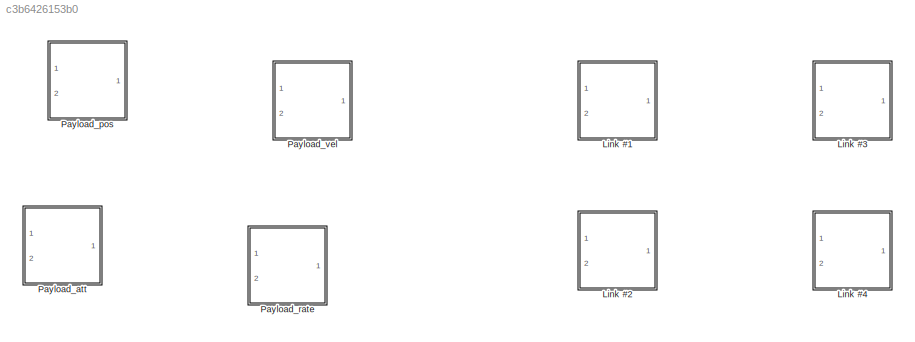
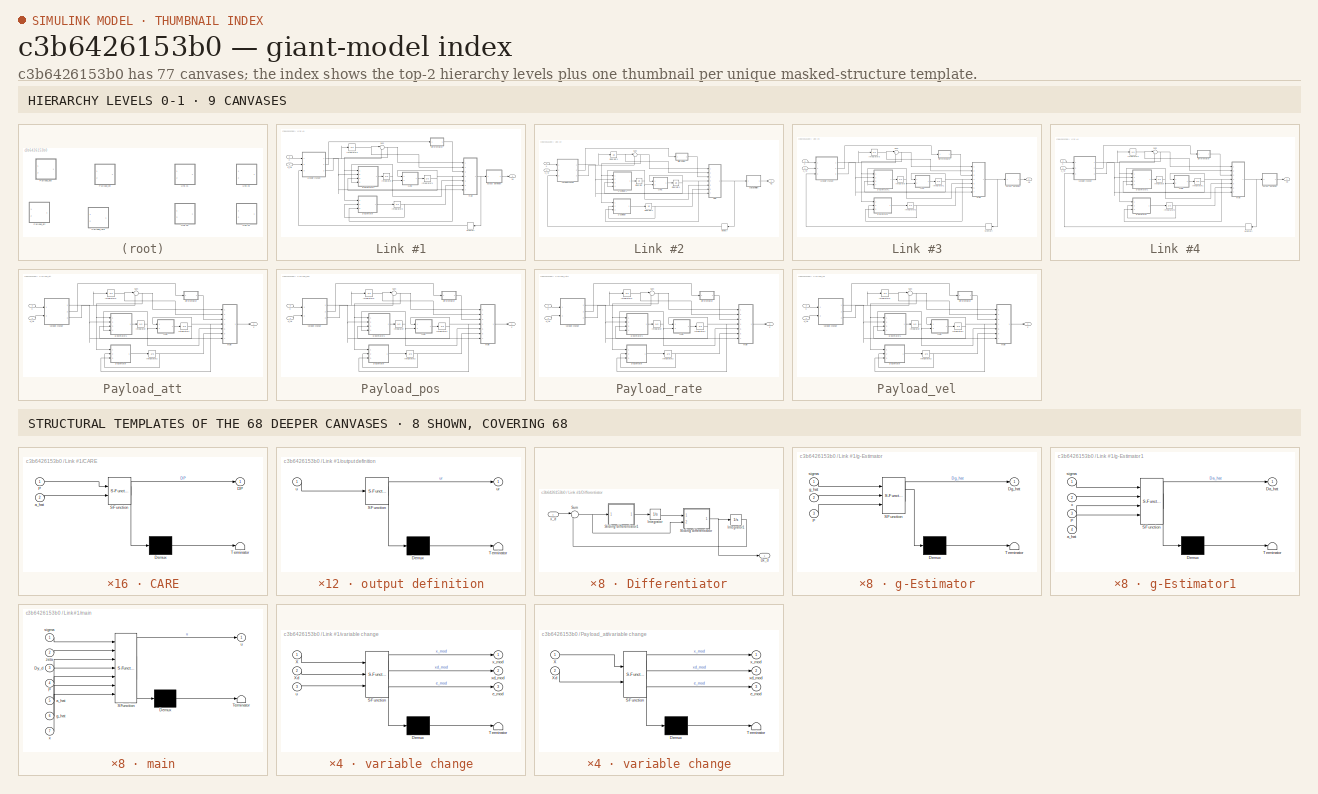
[diagram: thumbnail index - top-2 hierarchy levels (9 canvases) + 8 structural-template representatives of the remaining 68 canvases]
MODEL slx_c3b6426153b0
KIND model
CONFIG AbsTol = auto
CONFIG EnableMultiTasking = off
CONFIG FixedStep = auto
CONFIG MaxStep = auto
CONFIG MinStep = auto
CONFIG RelTol = 1e-3
CONFIG SampleTimeConstraint = Unconstrained
CONFIG Solver = VariableStepAuto
CONFIG SolverName = VariableStepAuto
CONFIG StartTime = 0.0
CONFIG StopTime = 10.0
BLOCK [SubSystem] Link #1
  Ports = [2, 1]
  RequestExecContextInheritance = off
BLOCK [SubSystem] Link #1/CARE
  ErrorFcn = Stateflow.Translate.translate
  PermitHierarchicalResolution = ExplicitOnly
  Ports = [2, 1]
  RequestExecContextInheritance = off
  SFBlockType = MATLAB Function
  TreatAsAtomicUnit = on
BLOCK [Demux] Link #1/CARE/ Demux 
  Outputs = 1
  Ports = [1, 1]
BLOCK [S-Function] Link #1/CARE/ SFunction 
  EnableBusSupport = on
  FunctionName = sf_sfun
  Parameters = BR,QL,R
  PortCounts = [2 2]
  Ports = [2, 2]
  SFcnIsStateOwnerBlock = off
  SFunctionDeploymentMode = off
  Tag = Stateflow S-Function AMFCs 56
BLOCK [Terminator] Link #1/CARE/ Terminator 
BLOCK [Outport] Link #1/CARE/DP
  IconDisplay = Port number
BLOCK [Inport] Link #1/CARE/P
  IconDisplay = Port number
BLOCK [Inport] Link #1/CARE/a_hat
  IconDisplay = Port number
  Port = 2
BLOCK [SubSystem] Link #1/Differentiator
  Ports = [1, 1]
  RequestExecContextInheritance = off
BLOCK [Outport] Link #1/Differentiator/Dx_d
  IconDisplay = Port number
BLOCK [Integrator] Link #1/Differentiator/Integrator
  InitialCondition = zeros(n,1)
  Ports = [1, 1]
BLOCK [Integrator] Link #1/Differentiator/Integrator1
  InitialCondition = zeros(n,1)
  Ports = [1, 1]
BLOCK [SubSystem] Link #1/Differentiator/Sliding differentiator
  ErrorFcn = Stateflow.Translate.translate
  PermitHierarchicalResolution = ExplicitOnly
  Ports = [2, 1]
  RequestExecContextInheritance = off
  SFBlockType = MATLAB Function
  TreatAsAtomicUnit = on
BLOCK [Demux] Link #1/Differentiator/Sliding differentiator/ Demux 
  Outputs = 1
  Ports = [1, 1]
BLOCK [S-Function] Link #1/Differentiator/Sliding differentiator/ SFunction 
  EnableBusSupport = on
  FunctionName = sf_sfun
  Parameters = cons_sld,k1,n
  PortCounts = [2 2]
  Ports = [2, 2]
  SFcnIsStateOwnerBlock = off
  SFunctionDeploymentMode = off
  Tag = Stateflow S-Function AMFCs 57
BLOCK [Terminator] Link #1/Differentiator/Sliding differentiator/ Terminator 
BLOCK [Inport] Link #1/Differentiator/Sliding differentiator/e
  IconDisplay = Port number
  Port = 2
BLOCK [Outport] Link #1/Differentiator/Sliding differentiator/u
  IconDisplay = Port number
BLOCK [Inport] Link #1/Differentiator/Sliding differentiator/u1
  IconDisplay = Port number
BLOCK [SubSystem] Link #1/Differentiator/Sliding differentiator1
  ErrorFcn = Stateflow.Translate.translate
  PermitHierarchicalResolution = ExplicitOnly
  Ports = [1, 1]
  RequestExecContextInheritance = off
  SFBlockType = MATLAB Function
  TreatAsAtomicUnit = on
BLOCK [Demux] Link #1/Differentiator/Sliding differentiator1/ Demux 
  Outputs = 1
  Ports = [1, 1]
BLOCK [S-Function] Link #1/Differentiator/Sliding differentiator1/ SFunction 
  EnableBusSupport = on
  FunctionName = sf_sfun
  Parameters = cons_sld,k2,n
  PortCounts = [1 2]
  Ports = [1, 2]
  SFcnIsStateOwnerBlock = off
  SFunctionDeploymentMode = off
  Tag = Stateflow S-Function AMFCs 58
BLOCK [Terminator] Link #1/Differentiator/Sliding differentiator1/ Terminator 
BLOCK [Outport] Link #1/Differentiator/Sliding differentiator1/Du1
  IconDisplay = Port number
BLOCK [Inport] Link #1/Differentiator/Sliding differentiator1/e
  IconDisplay = Port number
BLOCK [Sum] Link #1/Differentiator/Sum
  IconShape = round
  InputSameDT = off
  Inputs = |-+
  OutDataTypeStr = Inherit: Inherit via internal rule
  Ports = [2, 1]
  SaturateOnIntegerOverflow = off
BLOCK [Inport] Link #1/Differentiator/x_d
  IconDisplay = Port number
BLOCK [Integrator] Link #1/Integrator
  InitialCondition = zeros(n)
  Ports = [1, 1]
BLOCK [Integrator] Link #1/Integrator1
  InitialCondition = eye(n)
  Ports = [1, 1]
BLOCK [Integrator] Link #1/Integrator2
  InitialCondition = zeros(n,1)
  Ports = [1, 1]
BLOCK [Integrator] Link #1/Integrator3
  InitialCondition = zeros(n,1)
  Ports = [1, 1]
BLOCK [Memory] Link #1/Memory
  InitialCondition = zeros(n,1)
BLOCK [Outport] Link #1/N1
  IconDisplay = Port number
BLOCK [Sum] Link #1/Sum
  IconShape = round
  InputSameDT = off
  Inputs = |++
  OutDataTypeStr = Inherit: Inherit via internal rule
  Ports = [2, 1]
  SaturateOnIntegerOverflow = off
BLOCK [Inport] Link #1/X
  IconDisplay = Port number
  Port = 2
BLOCK [SubSystem] Link #1/g-Estimator
  ErrorFcn = Stateflow.Translate.translate
  PermitHierarchicalResolution = ExplicitOnly
  Ports = [3, 1]
  RequestExecContextInheritance = off
  SFBlockType = MATLAB Function
  TreatAsAtomicUnit = on
BLOCK [Demux] Link #1/g-Estimator/ Demux 
  Outputs = 1
  Ports = [1, 1]
BLOCK [S-Function] Link #1/g-Estimator/ SFunction 
  EnableBusSupport = on
  FunctionName = sf_sfun
  Parameters = gamma_1L,rho_1L
  PortCounts = [3 2]
  Ports = [3, 2]
  SFcnIsStateOwnerBlock = off
  SFunctionDeploymentMode = off
  Tag = Stateflow S-Function AMFCs 62
BLOCK [Terminator] Link #1/g-Estimator/ Terminator 
BLOCK [Outport] Link #1/g-Estimator/Dg_hat
  IconDisplay = Port number
BLOCK [Inport] Link #1/g-Estimator/P
  IconDisplay = Port number
  Port = 3
BLOCK [Inport] Link #1/g-Estimator/g_hat
  IconDisplay = Port number
  Port = 2
BLOCK [Inport] Link #1/g-Estimator/sigma
  IconDisplay = Port number
BLOCK [SubSystem] Link #1/g-Estimator1
  ErrorFcn = Stateflow.Translate.translate
  PermitHierarchicalResolution = ExplicitOnly
  Ports = [4, 1]
  RequestExecContextInheritance = off
  SFBlockType = MATLAB Function
  TreatAsAtomicUnit = on
BLOCK [Demux] Link #1/g-Estimator1/ Demux 
  Outputs = 1
  Ports = [1, 1]
BLOCK [S-Function] Link #1/g-Estimator1/ SFunction 
  EnableBusSupport = on
  FunctionName = sf_sfun
  Parameters = gamma_0L,rho_0L
  PortCounts = [4 2]
  Ports = [4, 2]
  SFcnIsStateOwnerBlock = off
  SFunctionDeploymentMode = off
  Tag = Stateflow S-Function AMFCs 63
BLOCK [Terminator] Link #1/g-Estimator1/ Terminator 
BLOCK [Outport] Link #1/g-Estimator1/Da_hat
  IconDisplay = Port number
BLOCK [Inport] Link #1/g-Estimator1/P
  IconDisplay = Port number
  Port = 3
BLOCK [Inport] Link #1/g-Estimator1/a_hat
  IconDisplay = Port number
  Port = 4
BLOCK [Inport] Link #1/g-Estimator1/sigma
  IconDisplay = Port number
BLOCK [Inport] Link #1/g-Estimator1/x
  IconDisplay = Port number
  Port = 2
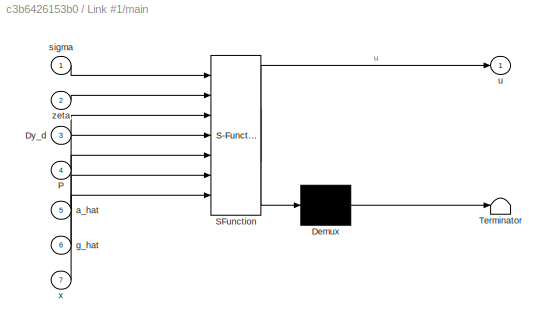
BLOCK [SubSystem] Link #1/main
  ErrorFcn = Stateflow.Translate.translate
  PermitHierarchicalResolution = ExplicitOnly
  Ports = [7, 1]
  RequestExecContextInheritance = off
  SFBlockType = MATLAB Function
  TreatAsAtomicUnit = on
BLOCK [Demux] Link #1/main/ Demux 
  Outputs = 1
  Ports = [1, 1]
BLOCK [S-Function] Link #1/main/ SFunction 
  EnableBusSupport = on
  FunctionName = sf_sfun
  Parameters = BBT_inv,BR,QL,R,n
  PortCounts = [7 2]
  Ports = [7, 2]
  SFcnIsStateOwnerBlock = off
  SFunctionDeploymentMode = off
  Tag = Stateflow S-Function AMFCs 64
BLOCK [Terminator] Link #1/main/ Terminator 
BLOCK [Inport] Link #1/main/Dy_d
  IconDisplay = Port number
  Port = 3
BLOCK [Inport] Link #1/main/P
  IconDisplay = Port number
  Port = 4
BLOCK [Inport] Link #1/main/a_hat
  IconDisplay = Port number
  Port = 5
BLOCK [Inport] Link #1/main/g_hat
  IconDisplay = Port number
  Port = 6
BLOCK [Inport] Link #1/main/sigma
  IconDisplay = Port number
BLOCK [Outport] Link #1/main/u
  IconDisplay = Port number
BLOCK [Inport] Link #1/main/x
  IconDisplay = Port number
  Port = 7
BLOCK [Inport] Link #1/main/zeta
  IconDisplay = Port number
  Port = 2
BLOCK [SubSystem] Link #1/output definition
  ErrorFcn = Stateflow.Translate.translate
  PermitHierarchicalResolution = ExplicitOnly
  Ports = [1, 1]
  RequestExecContextInheritance = off
  SFBlockType = MATLAB Function
  TreatAsAtomicUnit = on
BLOCK [Demux] Link #1/output definition/ Demux 
  Outputs = 1
  Ports = [1, 1]
BLOCK [S-Function] Link #1/output definition/ SFunction 
  EnableBusSupport = on
  FunctionName = sf_sfun
  PortCounts = [1 2]
  Ports = [1, 2]
  SFcnIsStateOwnerBlock = off
  SFunctionDeploymentMode = off
  Tag = Stateflow S-Function AMFCs 65
BLOCK [Terminator] Link #1/output definition/ Terminator 
BLOCK [Inport] Link #1/output definition/u
  IconDisplay = Port number
BLOCK [Outport] Link #1/output definition/ur
  IconDisplay = Port number
BLOCK [SubSystem] Link #1/variable change
  ErrorFcn = Stateflow.Translate.translate
  PermitHierarchicalResolution = ExplicitOnly
  Ports = [3, 3]
  RequestExecContextInheritance = off
  SFBlockType = MATLAB Function
  TreatAsAtomicUnit = on
BLOCK [Demux] Link #1/variable change/ Demux 
  Outputs = 1
  Ports = [1, 1]
BLOCK [S-Function] Link #1/variable change/ SFunction 
  EnableBusSupport = on
  FunctionName = sf_sfun
  PortCounts = [3 4]
  Ports = [3, 4]
  SFcnIsStateOwnerBlock = off
  SFunctionDeploymentMode = off
  Tag = Stateflow S-Function AMFCs 66
BLOCK [Terminator] Link #1/variable change/ Terminator 
BLOCK [Inport] Link #1/variable change/X
  IconDisplay = Port number
BLOCK [Inport] Link #1/variable change/Xd
  IconDisplay = Port number
  Port = 2
BLOCK [Outport] Link #1/variable change/e_mod
  IconDisplay = Port number
  Port = 3
BLOCK [Inport] Link #1/variable change/u
  IconDisplay = Port number
  Port = 3
BLOCK [Outport] Link #1/variable change/x_mod
  IconDisplay = Port number
BLOCK [Outport] Link #1/variable change/xd_mod
  IconDisplay = Port number
  Port = 2
BLOCK [Inport] Link #1/x_rd
  IconDisplay = Port number
BLOCK [SubSystem] Link #2
  Ports = [2, 1]
  RequestExecContextInheritance = off
BLOCK [SubSystem] Link #2/CARE
  ErrorFcn = Stateflow.Translate.translate
  PermitHierarchicalResolution = ExplicitOnly
  Ports = [2, 1]
  RequestExecContextInheritance = off
  SFBlockType = MATLAB Function
  TreatAsAtomicUnit = on
BLOCK [Demux] Link #2/CARE/ Demux 
  Outputs = 1
  Ports = [1, 1]
BLOCK [S-Function] Link #2/CARE/ SFunction 
  EnableBusSupport = on
  FunctionName = sf_sfun
  Parameters = BR,QL,R
  PortCounts = [2 2]
  Ports = [2, 2]
  SFcnIsStateOwnerBlock = off
  SFunctionDeploymentMode = off
  Tag = Stateflow S-Function AMFCs 67
BLOCK [Terminator] Link #2/CARE/ Terminator 
BLOCK [Outport] Link #2/CARE/DP
  IconDisplay = Port number
BLOCK [Inport] Link #2/CARE/P
  IconDisplay = Port number
BLOCK [Inport] Link #2/CARE/a_hat
  IconDisplay = Port number
  Port = 2
BLOCK [SubSystem] Link #2/Differentiator
  Ports = [1, 1]
  RequestExecContextInheritance = off
BLOCK [Outport] Link #2/Differentiator/Dx_d
  IconDisplay = Port number
BLOCK [Integrator] Link #2/Differentiator/Integrator
  InitialCondition = zeros(n,1)
  Ports = [1, 1]
BLOCK [Integrator] Link #2/Differentiator/Integrator1
  InitialCondition = zeros(n,1)
  Ports = [1, 1]
BLOCK [SubSystem] Link #2/Differentiator/Sliding differentiator
  ErrorFcn = Stateflow.Translate.translate
  PermitHierarchicalResolution = ExplicitOnly
  Ports = [2, 1]
  RequestExecContextInheritance = off
  SFBlockType = MATLAB Function
  TreatAsAtomicUnit = on
BLOCK [Demux] Link #2/Differentiator/Sliding differentiator/ Demux 
  Outputs = 1
  Ports = [1, 1]
BLOCK [S-Function] Link #2/Differentiator/Sliding differentiator/ SFunction 
  EnableBusSupport = on
  FunctionName = sf_sfun
  Parameters = cons_sld,k1,n
  PortCounts = [2 2]
  Ports = [2, 2]
  SFcnIsStateOwnerBlock = off
  SFunctionDeploymentMode = off
  Tag = Stateflow S-Function AMFCs 68
BLOCK [Terminator] Link #2/Differentiator/Sliding differentiator/ Terminator 
BLOCK [Inport] Link #2/Differentiator/Sliding differentiator/e
  IconDisplay = Port number
  Port = 2
BLOCK [Outport] Link #2/Differentiator/Sliding differentiator/u
  IconDisplay = Port number
BLOCK [Inport] Link #2/Differentiator/Sliding differentiator/u1
  IconDisplay = Port number
BLOCK [SubSystem] Link #2/Differentiator/Sliding differentiator1
  ErrorFcn = Stateflow.Translate.translate
  PermitHierarchicalResolution = ExplicitOnly
  Ports = [1, 1]
  RequestExecContextInheritance = off
  SFBlockType = MATLAB Function
  TreatAsAtomicUnit = on
BLOCK [Demux] Link #2/Differentiator/Sliding differentiator1/ Demux 
  Outputs = 1
  Ports = [1, 1]
BLOCK [S-Function] Link #2/Differentiator/Sliding differentiator1/ SFunction 
  EnableBusSupport = on
  FunctionName = sf_sfun
  Parameters = cons_sld,k2,n
  PortCounts = [1 2]
  Ports = [1, 2]
  SFcnIsStateOwnerBlock = off
  SFunctionDeploymentMode = off
  Tag = Stateflow S-Function AMFCs 69
BLOCK [Terminator] Link #2/Differentiator/Sliding differentiator1/ Terminator 
BLOCK [Outport] Link #2/Differentiator/Sliding differentiator1/Du1
  IconDisplay = Port number
BLOCK [Inport] Link #2/Differentiator/Sliding differentiator1/e
  IconDisplay = Port number
BLOCK [Sum] Link #2/Differentiator/Sum
  IconShape = round
  InputSameDT = off
  Inputs = |-+
  OutDataTypeStr = Inherit: Inherit via internal rule
  Ports = [2, 1]
  SaturateOnIntegerOverflow = off
BLOCK [Inport] Link #2/Differentiator/x_d
  IconDisplay = Port number
BLOCK [Integrator] Link #2/Integrator
  InitialCondition = zeros(n)
  Ports = [1, 1]
BLOCK [Integrator] Link #2/Integrator1
  InitialCondition = eye(n)
  Ports = [1, 1]
BLOCK [Integrator] Link #2/Integrator2
  InitialCondition = zeros(n,1)
  Ports = [1, 1]
BLOCK [Integrator] Link #2/Integrator3
  InitialCondition = zeros(n,1)
  Ports = [1, 1]
BLOCK [Memory] Link #2/Memory
  InitialCondition = zeros(n,1)
BLOCK [Outport] Link #2/N2
  IconDisplay = Port number
BLOCK [Sum] Link #2/Sum
  IconShape = round
  InputSameDT = off
  Inputs = |++
  OutDataTypeStr = Inherit: Inherit via internal rule
  Ports = [2, 1]
  SaturateOnIntegerOverflow = off
BLOCK [Inport] Link #2/X
  IconDisplay = Port number
  Port = 2
BLOCK [SubSystem] Link #2/g-Estimator
  ErrorFcn = Stateflow.Translate.translate
  PermitHierarchicalResolution = ExplicitOnly
  Ports = [3, 1]
  RequestExecContextInheritance = off
  SFBlockType = MATLAB Function
  TreatAsAtomicUnit = on
BLOCK [Demux] Link #2/g-Estimator/ Demux 
  Outputs = 1
  Ports = [1, 1]
BLOCK [S-Function] Link #2/g-Estimator/ SFunction 
  EnableBusSupport = on
  FunctionName = sf_sfun
  Parameters = gamma_1L,rho_1L
  PortCounts = [3 2]
  Ports = [3, 2]
  SFcnIsStateOwnerBlock = off
  SFunctionDeploymentMode = off
  Tag = Stateflow S-Function AMFCs 70
BLOCK [Terminator] Link #2/g-Estimator/ Terminator 
BLOCK [Outport] Link #2/g-Estimator/Dg_hat
  IconDisplay = Port number
BLOCK [Inport] Link #2/g-Estimator/P
  IconDisplay = Port number
  Port = 3
BLOCK [Inport] Link #2/g-Estimator/g_hat
  IconDisplay = Port number
  Port = 2
BLOCK [Inport] Link #2/g-Estimator/sigma
  IconDisplay = Port number
BLOCK [SubSystem] Link #2/g-Estimator1
  ErrorFcn = Stateflow.Translate.translate
  PermitHierarchicalResolution = ExplicitOnly
  Ports = [4, 1]
  RequestExecContextInheritance = off
  SFBlockType = MATLAB Function
  TreatAsAtomicUnit = on
BLOCK [Demux] Link #2/g-Estimator1/ Demux 
  Outputs = 1
  Ports = [1, 1]
BLOCK [S-Function] Link #2/g-Estimator1/ SFunction 
  EnableBusSupport = on
  FunctionName = sf_sfun
  Parameters = gamma_0L,rho_0L
  PortCounts = [4 2]
  Ports = [4, 2]
  SFcnIsStateOwnerBlock = off
  SFunctionDeploymentMode = off
  Tag = Stateflow S-Function AMFCs 71
BLOCK [Terminator] Link #2/g-Estimator1/ Terminator 
BLOCK [Outport] Link #2/g-Estimator1/Da_hat
  IconDisplay = Port number
BLOCK [Inport] Link #2/g-Estimator1/P
  IconDisplay = Port number
  Port = 3
BLOCK [Inport] Link #2/g-Estimator1/a_hat
  IconDisplay = Port number
  Port = 4
BLOCK [Inport] Link #2/g-Estimator1/sigma
  IconDisplay = Port number
BLOCK [Inport] Link #2/g-Estimator1/x
  IconDisplay = Port number
  Port = 2
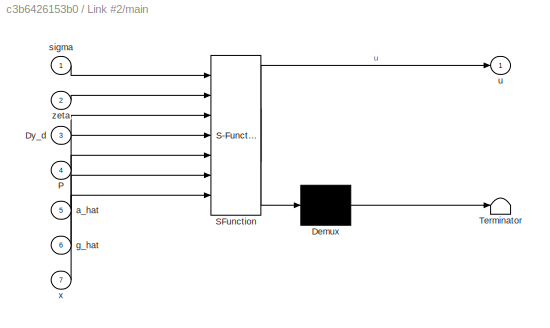
BLOCK [SubSystem] Link #2/main
  ErrorFcn = Stateflow.Translate.translate
  PermitHierarchicalResolution = ExplicitOnly
  Ports = [7, 1]
  RequestExecContextInheritance = off
  SFBlockType = MATLAB Function
  TreatAsAtomicUnit = on
BLOCK [Demux] Link #2/main/ Demux 
  Outputs = 1
  Ports = [1, 1]
BLOCK [S-Function] Link #2/main/ SFunction 
  EnableBusSupport = on
  FunctionName = sf_sfun
  Parameters = BBT_inv,BR,QL,R,n
  PortCounts = [7 2]
  Ports = [7, 2]
  SFcnIsStateOwnerBlock = off
  SFunctionDeploymentMode = off
  Tag = Stateflow S-Function AMFCs 72
BLOCK [Terminator] Link #2/main/ Terminator 
BLOCK [Inport] Link #2/main/Dy_d
  IconDisplay = Port number
  Port = 3
BLOCK [Inport] Link #2/main/P
  IconDisplay = Port number
  Port = 4
BLOCK [Inport] Link #2/main/a_hat
  IconDisplay = Port number
  Port = 5
BLOCK [Inport] Link #2/main/g_hat
  IconDisplay = Port number
  Port = 6
BLOCK [Inport] Link #2/main/sigma
  IconDisplay = Port number
BLOCK [Outport] Link #2/main/u
  IconDisplay = Port number
BLOCK [Inport] Link #2/main/x
  IconDisplay = Port number
  Port = 7
BLOCK [Inport] Link #2/main/zeta
  IconDisplay = Port number
  Port = 2
BLOCK [SubSystem] Link #2/output definition
  ErrorFcn = Stateflow.Translate.translate
  PermitHierarchicalResolution = ExplicitOnly
  Ports = [1, 1]
  RequestExecContextInheritance = off
  SFBlockType = MATLAB Function
  TreatAsAtomicUnit = on
BLOCK [Demux] Link #2/output definition/ Demux 
  Outputs = 1
  Ports = [1, 1]
BLOCK [S-Function] Link #2/output definition/ SFunction 
  EnableBusSupport = on
  FunctionName = sf_sfun
  PortCounts = [1 2]
  Ports = [1, 2]
  SFcnIsStateOwnerBlock = off
  SFunctionDeploymentMode = off
  Tag = Stateflow S-Function AMFCs 73
BLOCK [Terminator] Link #2/output definition/ Terminator 
BLOCK [Inport] Link #2/output definition/u
  IconDisplay = Port number
BLOCK [Outport] Link #2/output definition/ur
  IconDisplay = Port number
BLOCK [SubSystem] Link #2/variable change
  ErrorFcn = Stateflow.Translate.translate
  PermitHierarchicalResolution = ExplicitOnly
  Ports = [3, 3]
  RequestExecContextInheritance = off
  SFBlockType = MATLAB Function
  TreatAsAtomicUnit = on
BLOCK [Demux] Link #2/variable change/ Demux 
  Outputs = 1
  Ports = [1, 1]
BLOCK [S-Function] Link #2/variable change/ SFunction 
  EnableBusSupport = on
  FunctionName = sf_sfun
  PortCounts = [3 4]
  Ports = [3, 4]
  SFcnIsStateOwnerBlock = off
  SFunctionDeploymentMode = off
  Tag = Stateflow S-Function AMFCs 74
BLOCK [Terminator] Link #2/variable change/ Terminator 
BLOCK [Inport] Link #2/variable change/X
  IconDisplay = Port number
BLOCK [Inport] Link #2/variable change/Xd
  IconDisplay = Port number
  Port = 2
BLOCK [Outport] Link #2/variable change/e_mod
  IconDisplay = Port number
  Port = 3
BLOCK [Inport] Link #2/variable change/u
  IconDisplay = Port number
  Port = 3
BLOCK [Outport] Link #2/variable change/x_mod
  IconDisplay = Port number
BLOCK [Outport] Link #2/variable change/xd_mod
  IconDisplay = Port number
  Port = 2
BLOCK [Inport] Link #2/x_rd
  IconDisplay = Port number
BLOCK [SubSystem] Link #3
  Ports = [2, 1]
  RequestExecContextInheritance = off
BLOCK [SubSystem] Link #3/CARE
  ErrorFcn = Stateflow.Translate.translate
  PermitHierarchicalResolution = ExplicitOnly
  Ports = [2, 1]
  RequestExecContextInheritance = off
  SFBlockType = MATLAB Function
  TreatAsAtomicUnit = on
BLOCK [Demux] Link #3/CARE/ Demux 
  Outputs = 1
  Ports = [1, 1]
BLOCK [S-Function] Link #3/CARE/ SFunction 
  EnableBusSupport = on
  FunctionName = sf_sfun
  Parameters = BR,QL,R
  PortCounts = [2 2]
  Ports = [2, 2]
  SFcnIsStateOwnerBlock = off
  SFunctionDeploymentMode = off
  Tag = Stateflow S-Function AMFCs 75
BLOCK [Terminator] Link #3/CARE/ Terminator 
BLOCK [Outport] Link #3/CARE/DP
  IconDisplay = Port number
BLOCK [Inport] Link #3/CARE/P
  IconDisplay = Port number
BLOCK [Inport] Link #3/CARE/a_hat
  IconDisplay = Port number
  Port = 2
BLOCK [SubSystem] Link #3/Differentiator
  Ports = [1, 1]
  RequestExecContextInheritance = off
BLOCK [Outport] Link #3/Differentiator/Dx_d
  IconDisplay = Port number
BLOCK [Integrator] Link #3/Differentiator/Integrator
  InitialCondition = zeros(n,1)
  Ports = [1, 1]
BLOCK [Integrator] Link #3/Differentiator/Integrator1
  InitialCondition = zeros(n,1)
  Ports = [1, 1]
BLOCK [SubSystem] Link #3/Differentiator/Sliding differentiator
  ErrorFcn = Stateflow.Translate.translate
  PermitHierarchicalResolution = ExplicitOnly
  Ports = [2, 1]
  RequestExecContextInheritance = off
  SFBlockType = MATLAB Function
  TreatAsAtomicUnit = on
BLOCK [Demux] Link #3/Differentiator/Sliding differentiator/ Demux 
  Outputs = 1
  Ports = [1, 1]
BLOCK [S-Function] Link #3/Differentiator/Sliding differentiator/ SFunction 
  EnableBusSupport = on
  FunctionName = sf_sfun
  Parameters = cons_sld,k1,n
  PortCounts = [2 2]
  Ports = [2, 2]
  SFcnIsStateOwnerBlock = off
  SFunctionDeploymentMode = off
  Tag = Stateflow S-Function AMFCs 76
BLOCK [Terminator] Link #3/Differentiator/Sliding differentiator/ Terminator 
BLOCK [Inport] Link #3/Differentiator/Sliding differentiator/e
  IconDisplay = Port number
  Port = 2
BLOCK [Outport] Link #3/Differentiator/Sliding differentiator/u
  IconDisplay = Port number
BLOCK [Inport] Link #3/Differentiator/Sliding differentiator/u1
  IconDisplay = Port number
BLOCK [SubSystem] Link #3/Differentiator/Sliding differentiator1
  ErrorFcn = Stateflow.Translate.translate
  PermitHierarchicalResolution = ExplicitOnly
  Ports = [1, 1]
  RequestExecContextInheritance = off
  SFBlockType = MATLAB Function
  TreatAsAtomicUnit = on
BLOCK [Demux] Link #3/Differentiator/Sliding differentiator1/ Demux 
  Outputs = 1
  Ports = [1, 1]
BLOCK [S-Function] Link #3/Differentiator/Sliding differentiator1/ SFunction 
  EnableBusSupport = on
  FunctionName = sf_sfun
  Parameters = cons_sld,k2,n
  PortCounts = [1 2]
  Ports = [1, 2]
  SFcnIsStateOwnerBlock = off
  SFunctionDeploymentMode = off
  Tag = Stateflow S-Function AMFCs 78
BLOCK [Terminator] Link #3/Differentiator/Sliding differentiator1/ Terminator 
BLOCK [Outport] Link #3/Differentiator/Sliding differentiator1/Du1
  IconDisplay = Port number
BLOCK [Inport] Link #3/Differentiator/Sliding differentiator1/e
  IconDisplay = Port number
BLOCK [Sum] Link #3/Differentiator/Sum
  IconShape = round
  InputSameDT = off
  Inputs = |-+
  OutDataTypeStr = Inherit: Inherit via internal rule
  Ports = [2, 1]
  SaturateOnIntegerOverflow = off
BLOCK [Inport] Link #3/Differentiator/x_d
  IconDisplay = Port number
BLOCK [Integrator] Link #3/Integrator
  InitialCondition = zeros(n)
  Ports = [1, 1]
BLOCK [Integrator] Link #3/Integrator1
  InitialCondition = eye(n)
  Ports = [1, 1]
BLOCK [Integrator] Link #3/Integrator2
  InitialCondition = zeros(n,1)
  Ports = [1, 1]
BLOCK [Integrator] Link #3/Integrator3
  InitialCondition = zeros(n,1)
  Ports = [1, 1]
BLOCK [Memory] Link #3/Memory
  InitialCondition = zeros(n,1)
BLOCK [Outport] Link #3/N3
  IconDisplay = Port number
BLOCK [Sum] Link #3/Sum
  IconShape = round
  InputSameDT = off
  Inputs = |++
  OutDataTypeStr = Inherit: Inherit via internal rule
  Ports = [2, 1]
  SaturateOnIntegerOverflow = off
BLOCK [Inport] Link #3/X
  IconDisplay = Port number
  Port = 2
BLOCK [SubSystem] Link #3/g-Estimator
  ErrorFcn = Stateflow.Translate.translate
  PermitHierarchicalResolution = ExplicitOnly
  Ports = [3, 1]
  RequestExecContextInheritance = off
  SFBlockType = MATLAB Function
  TreatAsAtomicUnit = on
BLOCK [Demux] Link #3/g-Estimator/ Demux 
  Outputs = 1
  Ports = [1, 1]
BLOCK [S-Function] Link #3/g-Estimator/ SFunction 
  EnableBusSupport = on
  FunctionName = sf_sfun
  Parameters = gamma_1L,rho_1L
  PortCounts = [3 2]
  Ports = [3, 2]
  SFcnIsStateOwnerBlock = off
  SFunctionDeploymentMode = off
  Tag = Stateflow S-Function AMFCs 79
BLOCK [Terminator] Link #3/g-Estimator/ Terminator 
BLOCK [Outport] Link #3/g-Estimator/Dg_hat
  IconDisplay = Port number
BLOCK [Inport] Link #3/g-Estimator/P
  IconDisplay = Port number
  Port = 3
BLOCK [Inport] Link #3/g-Estimator/g_hat
  IconDisplay = Port number
  Port = 2
BLOCK [Inport] Link #3/g-Estimator/sigma
  IconDisplay = Port number
BLOCK [SubSystem] Link #3/g-Estimator1
  ErrorFcn = Stateflow.Translate.translate
  PermitHierarchicalResolution = ExplicitOnly
  Ports = [4, 1]
  RequestExecContextInheritance = off
  SFBlockType = MATLAB Function
  TreatAsAtomicUnit = on
BLOCK [Demux] Link #3/g-Estimator1/ Demux 
  Outputs = 1
  Ports = [1, 1]
BLOCK [S-Function] Link #3/g-Estimator1/ SFunction 
  EnableBusSupport = on
  FunctionName = sf_sfun
  Parameters = gamma_0L,rho_0L
  PortCounts = [4 2]
  Ports = [4, 2]
  SFcnIsStateOwnerBlock = off
  SFunctionDeploymentMode = off
  Tag = Stateflow S-Function AMFCs 80
BLOCK [Terminator] Link #3/g-Estimator1/ Terminator 
BLOCK [Outport] Link #3/g-Estimator1/Da_hat
  IconDisplay = Port number
BLOCK [Inport] Link #3/g-Estimator1/P
  IconDisplay = Port number
  Port = 3
BLOCK [Inport] Link #3/g-Estimator1/a_hat
  IconDisplay = Port number
  Port = 4
BLOCK [Inport] Link #3/g-Estimator1/sigma
  IconDisplay = Port number
BLOCK [Inport] Link #3/g-Estimator1/x
  IconDisplay = Port number
  Port = 2
BLOCK [SubSystem] Link #3/main
  ErrorFcn = Stateflow.Translate.translate
  PermitHierarchicalResolution = ExplicitOnly
  Ports = [7, 1]
  RequestExecContextInheritance = off
  SFBlockType = MATLAB Function
  TreatAsAtomicUnit = on
BLOCK [Demux] Link #3/main/ Demux 
  Outputs = 1
  Ports = [1, 1]
BLOCK [S-Function] Link #3/main/ SFunction 
  EnableBusSupport = on
  FunctionName = sf_sfun
  Parameters = BBT_inv,BR,QL,R,n
  PortCounts = [7 2]
  Ports = [7, 2]
  SFcnIsStateOwnerBlock = off
  SFunctionDeploymentMode = off
  Tag = Stateflow S-Function AMFCs 81
BLOCK [Terminator] Link #3/main/ Terminator 
BLOCK [Inport] Link #3/main/Dy_d
  IconDisplay = Port number
  Port = 3
BLOCK [Inport] Link #3/main/P
  IconDisplay = Port number
  Port = 4
BLOCK [Inport] Link #3/main/a_hat
  IconDisplay = Port number
  Port = 5
BLOCK [Inport] Link #3/main/g_hat
  IconDisplay = Port number
  Port = 6
BLOCK [Inport] Link #3/main/sigma
  IconDisplay = Port number
BLOCK [Outport] Link #3/main/u
  IconDisplay = Port number
BLOCK [Inport] Link #3/main/x
  IconDisplay = Port number
  Port = 7
BLOCK [Inport] Link #3/main/zeta
  IconDisplay = Port number
  Port = 2
BLOCK [SubSystem] Link #3/output definition
  ErrorFcn = Stateflow.Translate.translate
  PermitHierarchicalResolution = ExplicitOnly
  Ports = [1, 1]
  RequestExecContextInheritance = off
  SFBlockType = MATLAB Function
  TreatAsAtomicUnit = on
BLOCK [Demux] Link #3/output definition/ Demux 
  Outputs = 1
  Ports = [1, 1]
BLOCK [S-Function] Link #3/output definition/ SFunction 
  EnableBusSupport = on
  FunctionName = sf_sfun
  PortCounts = [1 2]
  Ports = [1, 2]
  SFcnIsStateOwnerBlock = off
  SFunctionDeploymentMode = off
  Tag = Stateflow S-Function AMFCs 82
BLOCK [Terminator] Link #3/output definition/ Terminator 
BLOCK [Inport] Link #3/output definition/u
  IconDisplay = Port number
BLOCK [Outport] Link #3/output definition/ur
  IconDisplay = Port number
BLOCK [SubSystem] Link #3/variable change
  ErrorFcn = Stateflow.Translate.translate
  PermitHierarchicalResolution = ExplicitOnly
  Ports = [3, 3]
  RequestExecContextInheritance = off
  SFBlockType = MATLAB Function
  TreatAsAtomicUnit = on
BLOCK [Demux] Link #3/variable change/ Demux 
  Outputs = 1
  Ports = [1, 1]
BLOCK [S-Function] Link #3/variable change/ SFunction 
  EnableBusSupport = on
  FunctionName = sf_sfun
  PortCounts = [3 4]
  Ports = [3, 4]
  SFcnIsStateOwnerBlock = off
  SFunctionDeploymentMode = off
  Tag = Stateflow S-Function AMFCs 83
BLOCK [Terminator] Link #3/variable change/ Terminator 
BLOCK [Inport] Link #3/variable change/X
  IconDisplay = Port number
BLOCK [Inport] Link #3/variable change/Xd
  IconDisplay = Port number
  Port = 2
BLOCK [Outport] Link #3/variable change/e_mod
  IconDisplay = Port number
  Port = 3
BLOCK [Inport] Link #3/variable change/u
  IconDisplay = Port number
  Port = 3
BLOCK [Outport] Link #3/variable change/x_mod
  IconDisplay = Port number
BLOCK [Outport] Link #3/variable change/xd_mod
  IconDisplay = Port number
  Port = 2
BLOCK [Inport] Link #3/x_rd
  IconDisplay = Port number
BLOCK [SubSystem] Link #4
  Ports = [2, 1]
  RequestExecContextInheritance = off
BLOCK [SubSystem] Link #4/CARE
  ErrorFcn = Stateflow.Translate.translate
  PermitHierarchicalResolution = ExplicitOnly
  Ports = [2, 1]
  RequestExecContextInheritance = off
  SFBlockType = MATLAB Function
  TreatAsAtomicUnit = on
BLOCK [Demux] Link #4/CARE/ Demux 
  Outputs = 1
  Ports = [1, 1]
BLOCK [S-Function] Link #4/CARE/ SFunction 
  EnableBusSupport = on
  FunctionName = sf_sfun
  Parameters = BR,QL,R
  PortCounts = [2 2]
  Ports = [2, 2]
  SFcnIsStateOwnerBlock = off
  SFunctionDeploymentMode = off
  Tag = Stateflow S-Function AMFCs 90
BLOCK [Terminator] Link #4/CARE/ Terminator 
BLOCK [Outport] Link #4/CARE/DP
  IconDisplay = Port number
BLOCK [Inport] Link #4/CARE/P
  IconDisplay = Port number
BLOCK [Inport] Link #4/CARE/a_hat
  IconDisplay = Port number
  Port = 2
BLOCK [SubSystem] Link #4/Differentiator
  Ports = [1, 1]
  RequestExecContextInheritance = off
BLOCK [Outport] Link #4/Differentiator/Dx_d
  IconDisplay = Port number
BLOCK [Integrator] Link #4/Differentiator/Integrator
  InitialCondition = zeros(n,1)
  Ports = [1, 1]
BLOCK [Integrator] Link #4/Differentiator/Integrator1
  InitialCondition = zeros(n,1)
  Ports = [1, 1]
BLOCK [SubSystem] Link #4/Differentiator/Sliding differentiator
  ErrorFcn = Stateflow.Translate.translate
  PermitHierarchicalResolution = ExplicitOnly
  Ports = [2, 1]
  RequestExecContextInheritance = off
  SFBlockType = MATLAB Function
  TreatAsAtomicUnit = on
BLOCK [Demux] Link #4/Differentiator/Sliding differentiator/ Demux 
  Outputs = 1
  Ports = [1, 1]
BLOCK [S-Function] Link #4/Differentiator/Sliding differentiator/ SFunction 
  EnableBusSupport = on
  FunctionName = sf_sfun
  Parameters = cons_sld,k1,n
  PortCounts = [2 2]
  Ports = [2, 2]
  SFcnIsStateOwnerBlock = off
  SFunctionDeploymentMode = off
  Tag = Stateflow S-Function AMFCs 91
BLOCK [Terminator] Link #4/Differentiator/Sliding differentiator/ Terminator 
BLOCK [Inport] Link #4/Differentiator/Sliding differentiator/e
  IconDisplay = Port number
  Port = 2
BLOCK [Outport] Link #4/Differentiator/Sliding differentiator/u
  IconDisplay = Port number
BLOCK [Inport] Link #4/Differentiator/Sliding differentiator/u1
  IconDisplay = Port number
BLOCK [SubSystem] Link #4/Differentiator/Sliding differentiator1
  ErrorFcn = Stateflow.Translate.translate
  PermitHierarchicalResolution = ExplicitOnly
  Ports = [1, 1]
  RequestExecContextInheritance = off
  SFBlockType = MATLAB Function
  TreatAsAtomicUnit = on
BLOCK [Demux] Link #4/Differentiator/Sliding differentiator1/ Demux 
  Outputs = 1
  Ports = [1, 1]
BLOCK [S-Function] Link #4/Differentiator/Sliding differentiator1/ SFunction 
  EnableBusSupport = on
  FunctionName = sf_sfun
  Parameters = cons_sld,k2,n
  PortCounts = [1 2]
  Ports = [1, 2]
  SFcnIsStateOwnerBlock = off
  SFunctionDeploymentMode = off
  Tag = Stateflow S-Function AMFCs 92
BLOCK [Terminator] Link #4/Differentiator/Sliding differentiator1/ Terminator 
BLOCK [Outport] Link #4/Differentiator/Sliding differentiator1/Du1
  IconDisplay = Port number
BLOCK [Inport] Link #4/Differentiator/Sliding differentiator1/e
  IconDisplay = Port number
BLOCK [Sum] Link #4/Differentiator/Sum
  IconShape = round
  InputSameDT = off
  Inputs = |-+
  OutDataTypeStr = Inherit: Inherit via internal rule
  Ports = [2, 1]
  SaturateOnIntegerOverflow = off
BLOCK [Inport] Link #4/Differentiator/x_d
  IconDisplay = Port number
BLOCK [Integrator] Link #4/Integrator
  InitialCondition = zeros(n)
  Ports = [1, 1]
BLOCK [Integrator] Link #4/Integrator1
  InitialCondition = eye(n)
  Ports = [1, 1]
BLOCK [Integrator] Link #4/Integrator2
  InitialCondition = zeros(n,1)
  Ports = [1, 1]
BLOCK [Integrator] Link #4/Integrator3
  InitialCondition = zeros(n,1)
  Ports = [1, 1]
BLOCK [Memory] Link #4/Memory
  InitialCondition = zeros(n,1)
BLOCK [Outport] Link #4/N4
  IconDisplay = Port number
BLOCK [Sum] Link #4/Sum
  IconShape = round
  InputSameDT = off
  Inputs = |++
  OutDataTypeStr = Inherit: Inherit via internal rule
  Ports = [2, 1]
  SaturateOnIntegerOverflow = off
BLOCK [Inport] Link #4/X
  IconDisplay = Port number
  Port = 2
BLOCK [SubSystem] Link #4/g-Estimator
  ErrorFcn = Stateflow.Translate.translate
  PermitHierarchicalResolution = ExplicitOnly
  Ports = [3, 1]
  RequestExecContextInheritance = off
  SFBlockType = MATLAB Function
  TreatAsAtomicUnit = on
BLOCK [Demux] Link #4/g-Estimator/ Demux 
  Outputs = 1
  Ports = [1, 1]
BLOCK [S-Function] Link #4/g-Estimator/ SFunction 
  EnableBusSupport = on
  FunctionName = sf_sfun
  Parameters = gamma_1L,rho_1L
  PortCounts = [3 2]
  Ports = [3, 2]
  SFcnIsStateOwnerBlock = off
  SFunctionDeploymentMode = off
  Tag = Stateflow S-Function AMFCs 93
BLOCK [Terminator] Link #4/g-Estimator/ Terminator 
BLOCK [Outport] Link #4/g-Estimator/Dg_hat
  IconDisplay = Port number
BLOCK [Inport] Link #4/g-Estimator/P
  IconDisplay = Port number
  Port = 3
BLOCK [Inport] Link #4/g-Estimator/g_hat
  IconDisplay = Port number
  Port = 2
BLOCK [Inport] Link #4/g-Estimator/sigma
  IconDisplay = Port number
BLOCK [SubSystem] Link #4/g-Estimator1
  ErrorFcn = Stateflow.Translate.translate
  PermitHierarchicalResolution = ExplicitOnly
  Ports = [4, 1]
  RequestExecContextInheritance = off
  SFBlockType = MATLAB Function
  TreatAsAtomicUnit = on
BLOCK [Demux] Link #4/g-Estimator1/ Demux 
  Outputs = 1
  Ports = [1, 1]
BLOCK [S-Function] Link #4/g-Estimator1/ SFunction 
  EnableBusSupport = on
  FunctionName = sf_sfun
  Parameters = gamma_0L,rho_0L
  PortCounts = [4 2]
  Ports = [4, 2]
  SFcnIsStateOwnerBlock = off
  SFunctionDeploymentMode = off
  Tag = Stateflow S-Function AMFCs 100
BLOCK [Terminator] Link #4/g-Estimator1/ Terminator 
BLOCK [Outport] Link #4/g-Estimator1/Da_hat
  IconDisplay = Port number
BLOCK [Inport] Link #4/g-Estimator1/P
  IconDisplay = Port number
  Port = 3
BLOCK [Inport] Link #4/g-Estimator1/a_hat
  IconDisplay = Port number
  Port = 4
BLOCK [Inport] Link #4/g-Estimator1/sigma
  IconDisplay = Port number
BLOCK [Inport] Link #4/g-Estimator1/x
  IconDisplay = Port number
  Port = 2
BLOCK [SubSystem] Link #4/main
  ErrorFcn = Stateflow.Translate.translate
  PermitHierarchicalResolution = ExplicitOnly
  Ports = [7, 1]
  RequestExecContextInheritance = off
  SFBlockType = MATLAB Function
  TreatAsAtomicUnit = on
BLOCK [Demux] Link #4/main/ Demux 
  Outputs = 1
  Ports = [1, 1]
BLOCK [S-Function] Link #4/main/ SFunction 
  EnableBusSupport = on
  FunctionName = sf_sfun
  Parameters = BBT_inv,BR,QL,R,n
  PortCounts = [7 2]
  Ports = [7, 2]
  SFcnIsStateOwnerBlock = off
  SFunctionDeploymentMode = off
  Tag = Stateflow S-Function AMFCs 101
BLOCK [Terminator] Link #4/main/ Terminator 
BLOCK [Inport] Link #4/main/Dy_d
  IconDisplay = Port number
  Port = 3
BLOCK [Inport] Link #4/main/P
  IconDisplay = Port number
  Port = 4
BLOCK [Inport] Link #4/main/a_hat
  IconDisplay = Port number
  Port = 5
BLOCK [Inport] Link #4/main/g_hat
  IconDisplay = Port number
  Port = 6
BLOCK [Inport] Link #4/main/sigma
  IconDisplay = Port number
BLOCK [Outport] Link #4/main/u
  IconDisplay = Port number
BLOCK [Inport] Link #4/main/x
  IconDisplay = Port number
  Port = 7
BLOCK [Inport] Link #4/main/zeta
  IconDisplay = Port number
  Port = 2
BLOCK [SubSystem] Link #4/output definition
  ErrorFcn = Stateflow.Translate.translate
  PermitHierarchicalResolution = ExplicitOnly
  Ports = [1, 1]
  RequestExecContextInheritance = off
  SFBlockType = MATLAB Function
  TreatAsAtomicUnit = on
BLOCK [Demux] Link #4/output definition/ Demux 
  Outputs = 1
  Ports = [1, 1]
BLOCK [S-Function] Link #4/output definition/ SFunction 
  EnableBusSupport = on
  FunctionName = sf_sfun
  PortCounts = [1 2]
  Ports = [1, 2]
  SFcnIsStateOwnerBlock = off
  SFunctionDeploymentMode = off
  Tag = Stateflow S-Function AMFCs 102
BLOCK [Terminator] Link #4/output definition/ Terminator 
BLOCK [Inport] Link #4/output definition/u
  IconDisplay = Port number
BLOCK [Outport] Link #4/output definition/ur
  IconDisplay = Port number
BLOCK [SubSystem] Link #4/variable change
  ErrorFcn = Stateflow.Translate.translate
  PermitHierarchicalResolution = ExplicitOnly
  Ports = [3, 3]
  RequestExecContextInheritance = off
  SFBlockType = MATLAB Function
  TreatAsAtomicUnit = on
BLOCK [Demux] Link #4/variable change/ Demux 
  Outputs = 1
  Ports = [1, 1]
BLOCK [S-Function] Link #4/variable change/ SFunction 
  EnableBusSupport = on
  FunctionName = sf_sfun
  PortCounts = [3 4]
  Ports = [3, 4]
  SFcnIsStateOwnerBlock = off
  SFunctionDeploymentMode = off
  Tag = Stateflow S-Function AMFCs 103
BLOCK [Terminator] Link #4/variable change/ Terminator 
BLOCK [Inport] Link #4/variable change/X
  IconDisplay = Port number
BLOCK [Inport] Link #4/variable change/Xd
  IconDisplay = Port number
  Port = 2
BLOCK [Outport] Link #4/variable change/e_mod
  IconDisplay = Port number
  Port = 3
BLOCK [Inport] Link #4/variable change/u
  IconDisplay = Port number
  Port = 3
BLOCK [Outport] Link #4/variable change/x_mod
  IconDisplay = Port number
BLOCK [Outport] Link #4/variable change/xd_mod
  IconDisplay = Port number
  Port = 2
BLOCK [Inport] Link #4/x_rd
  IconDisplay = Port number
BLOCK [SubSystem] Payload_att
  Ports = [2, 1]
  RequestExecContextInheritance = off
BLOCK [SubSystem] Payload_att/CARE
  ErrorFcn = Stateflow.Translate.translate
  PermitHierarchicalResolution = ExplicitOnly
  Ports = [2, 1]
  RequestExecContextInheritance = off
  SFBlockType = MATLAB Function
  TreatAsAtomicUnit = on
BLOCK [Demux] Payload_att/CARE/ Demux 
  Outputs = 1
  Ports = [1, 1]
BLOCK [S-Function] Payload_att/CARE/ SFunction 
  EnableBusSupport = on
  FunctionName = sf_sfun
  Parameters = BRp,Qa,Rp
  PortCounts = [2 2]
  Ports = [2, 2]
  SFcnIsStateOwnerBlock = off
  SFunctionDeploymentMode = off
  Tag = Stateflow S-Function AMFCs 122
BLOCK [Terminator] Payload_att/CARE/ Terminator 
BLOCK [Outport] Payload_att/CARE/DP
  IconDisplay = Port number
BLOCK [Inport] Payload_att/CARE/P
  IconDisplay = Port number
BLOCK [Inport] Payload_att/CARE/a_hat
  IconDisplay = Port number
  Port = 2
BLOCK [SubSystem] Payload_att/Differentiator
  Ports = [1, 1]
  RequestExecContextInheritance = off
BLOCK [Outport] Payload_att/Differentiator/Dx_d
  IconDisplay = Port number
BLOCK [Integrator] Payload_att/Differentiator/Integrator
  InitialCondition = zeros(np,1)
  Ports = [1, 1]
BLOCK [Integrator] Payload_att/Differentiator/Integrator1
  InitialCondition = zeros(np,1)
  Ports = [1, 1]
BLOCK [SubSystem] Payload_att/Differentiator/Sliding differentiator
  ErrorFcn = Stateflow.Translate.translate
  PermitHierarchicalResolution = ExplicitOnly
  Ports = [2, 1]
  RequestExecContextInheritance = off
  SFBlockType = MATLAB Function
  TreatAsAtomicUnit = on
BLOCK [Demux] Payload_att/Differentiator/Sliding differentiator/ Demux 
  Outputs = 1
  Ports = [1, 1]
BLOCK [S-Function] Payload_att/Differentiator/Sliding differentiator/ SFunction 
  EnableBusSupport = on
  FunctionName = sf_sfun
  Parameters = alpha_chatt,k1,np
  PortCounts = [2 2]
  Ports = [2, 2]
  SFcnIsStateOwnerBlock = off
  SFunctionDeploymentMode = off
  Tag = Stateflow S-Function AMFCs 123
BLOCK [Terminator] Payload_att/Differentiator/Sliding differentiator/ Terminator 
BLOCK [Inport] Payload_att/Differentiator/Sliding differentiator/e
  IconDisplay = Port number
  Port = 2
BLOCK [Outport] Payload_att/Differentiator/Sliding differentiator/u
  IconDisplay = Port number
BLOCK [Inport] Payload_att/Differentiator/Sliding differentiator/u1
  IconDisplay = Port number
BLOCK [SubSystem] Payload_att/Differentiator/Sliding differentiator1
  ErrorFcn = Stateflow.Translate.translate
  PermitHierarchicalResolution = ExplicitOnly
  Ports = [1, 1]
  RequestExecContextInheritance = off
  SFBlockType = MATLAB Function
  TreatAsAtomicUnit = on
BLOCK [Demux] Payload_att/Differentiator/Sliding differentiator1/ Demux 
  Outputs = 1
  Ports = [1, 1]
BLOCK [S-Function] Payload_att/Differentiator/Sliding differentiator1/ SFunction 
  EnableBusSupport = on
  FunctionName = sf_sfun
  Parameters = alpha_chatt,k2,np
  PortCounts = [1 2]
  Ports = [1, 2]
  SFcnIsStateOwnerBlock = off
  SFunctionDeploymentMode = off
  Tag = Stateflow S-Function AMFCs 124
BLOCK [Terminator] Payload_att/Differentiator/Sliding differentiator1/ Terminator 
BLOCK [Outport] Payload_att/Differentiator/Sliding differentiator1/Du1
  IconDisplay = Port number
BLOCK [Inport] Payload_att/Differentiator/Sliding differentiator1/e
  IconDisplay = Port number
BLOCK [Sum] Payload_att/Differentiator/Sum
  IconShape = round
  InputSameDT = off
  Inputs = |-+
  OutDataTypeStr = Inherit: Inherit via internal rule
  Ports = [2, 1]
  SaturateOnIntegerOverflow = off
BLOCK [Inport] Payload_att/Differentiator/x_d
  IconDisplay = Port number
BLOCK [Integrator] Payload_att/Integrator
  InitialCondition = zeros(np)
  Ports = [1, 1]
BLOCK [Integrator] Payload_att/Integrator1
  InitialCondition = eye(np)
  Ports = [1, 1]
BLOCK [Integrator] Payload_att/Integrator2
  InitialCondition = zeros(np,1)
  Ports = [1, 1]
BLOCK [Integrator] Payload_att/Integrator3
  InitialCondition = zeros(np,1)
  Ports = [1, 1]
BLOCK [Sum] Payload_att/Sum
  IconShape = round
  InputSameDT = off
  Inputs = |++
  OutDataTypeStr = Inherit: Inherit via internal rule
  Ports = [2, 1]
  SaturateOnIntegerOverflow = off
BLOCK [Inport] Payload_att/X
  IconDisplay = Port number
  Port = 2
BLOCK [SubSystem] Payload_att/g-Estimator
  ErrorFcn = Stateflow.Translate.translate
  PermitHierarchicalResolution = ExplicitOnly
  Ports = [3, 1]
  RequestExecContextInheritance = off
  SFBlockType = MATLAB Function
  TreatAsAtomicUnit = on
BLOCK [Demux] Payload_att/g-Estimator/ Demux 
  Outputs = 1
  Ports = [1, 1]
BLOCK [S-Function] Payload_att/g-Estimator/ SFunction 
  EnableBusSupport = on
  FunctionName = sf_sfun
  Parameters = gamma_1a,rho_1a
  PortCounts = [3 2]
  Ports = [3, 2]
  SFcnIsStateOwnerBlock = off
  SFunctionDeploymentMode = off
  Tag = Stateflow S-Function AMFCs 125
BLOCK [Terminator] Payload_att/g-Estimator/ Terminator 
BLOCK [Outport] Payload_att/g-Estimator/Dg_hat
  IconDisplay = Port number
BLOCK [Inport] Payload_att/g-Estimator/P
  IconDisplay = Port number
  Port = 3
BLOCK [Inport] Payload_att/g-Estimator/g_hat
  IconDisplay = Port number
  Port = 2
BLOCK [Inport] Payload_att/g-Estimator/sigma
  IconDisplay = Port number
BLOCK [SubSystem] Payload_att/g-Estimator1
  ErrorFcn = Stateflow.Translate.translate
  PermitHierarchicalResolution = ExplicitOnly
  Ports = [4, 1]
  RequestExecContextInheritance = off
  SFBlockType = MATLAB Function
  TreatAsAtomicUnit = on
BLOCK [Demux] Payload_att/g-Estimator1/ Demux 
  Outputs = 1
  Ports = [1, 1]
BLOCK [S-Function] Payload_att/g-Estimator1/ SFunction 
  EnableBusSupport = on
  FunctionName = sf_sfun
  Parameters = gamma_0a,rho_0a
  PortCounts = [4 2]
  Ports = [4, 2]
  SFcnIsStateOwnerBlock = off
  SFunctionDeploymentMode = off
  Tag = Stateflow S-Function AMFCs 126
BLOCK [Terminator] Payload_att/g-Estimator1/ Terminator 
BLOCK [Outport] Payload_att/g-Estimator1/Da_hat
  IconDisplay = Port number
BLOCK [Inport] Payload_att/g-Estimator1/P
  IconDisplay = Port number
  Port = 3
BLOCK [Inport] Payload_att/g-Estimator1/a_hat
  IconDisplay = Port number
  Port = 4
BLOCK [Inport] Payload_att/g-Estimator1/sigma
  IconDisplay = Port number
BLOCK [Inport] Payload_att/g-Estimator1/x
  IconDisplay = Port number
  Port = 2
BLOCK [SubSystem] Payload_att/main
  ErrorFcn = Stateflow.Translate.translate
  PermitHierarchicalResolution = ExplicitOnly
  Ports = [7, 1]
  RequestExecContextInheritance = off
  SFBlockType = MATLAB Function
  TreatAsAtomicUnit = on
BLOCK [Demux] Payload_att/main/ Demux 
  Outputs = 1
  Ports = [1, 1]
BLOCK [S-Function] Payload_att/main/ SFunction 
  EnableBusSupport = on
  FunctionName = sf_sfun
  Parameters = BBT_invp,BRp,Qa,Rp,np
  PortCounts = [7 2]
  Ports = [7, 2]
  SFcnIsStateOwnerBlock = off
  SFunctionDeploymentMode = off
  Tag = Stateflow S-Function AMFCs 127
BLOCK [Terminator] Payload_att/main/ Terminator 
BLOCK [Inport] Payload_att/main/Dy_d
  IconDisplay = Port number
  Port = 3
BLOCK [Inport] Payload_att/main/P
  IconDisplay = Port number
  Port = 4
BLOCK [Inport] Payload_att/main/a_hat
  IconDisplay = Port number
  Port = 5
BLOCK [Inport] Payload_att/main/g_hat
  IconDisplay = Port number
  Port = 6
BLOCK [Inport] Payload_att/main/sigma
  IconDisplay = Port number
BLOCK [Outport] Payload_att/main/u
  IconDisplay = Port number
BLOCK [Inport] Payload_att/main/x
  IconDisplay = Port number
  Port = 7
BLOCK [Inport] Payload_att/main/zeta
  IconDisplay = Port number
  Port = 2
BLOCK [SubSystem] Payload_att/variable change
  ErrorFcn = Stateflow.Translate.translate
  PermitHierarchicalResolution = ExplicitOnly
  Ports = [2, 3]
  RequestExecContextInheritance = off
  SFBlockType = MATLAB Function
  TreatAsAtomicUnit = on
BLOCK [Demux] Payload_att/variable change/ Demux 
  Outputs = 1
  Ports = [1, 1]
BLOCK [S-Function] Payload_att/variable change/ SFunction 
  EnableBusSupport = on
  FunctionName = sf_sfun
  PortCounts = [2 4]
  Ports = [2, 4]
  SFcnIsStateOwnerBlock = off
  SFunctionDeploymentMode = off
  Tag = Stateflow S-Function AMFCs 128
BLOCK [Terminator] Payload_att/variable change/ Terminator 
BLOCK [Inport] Payload_att/variable change/X
  IconDisplay = Port number
BLOCK [Inport] Payload_att/variable change/Xd
  IconDisplay = Port number
  Port = 2
BLOCK [Outport] Payload_att/variable change/e_mod
  IconDisplay = Port number
  Port = 3
BLOCK [Outport] Payload_att/variable change/x_mod
  IconDisplay = Port number
BLOCK [Outport] Payload_att/variable change/xd_mod
  IconDisplay = Port number
  Port = 2
BLOCK [Inport] Payload_att/x_rd
  IconDisplay = Port number
BLOCK [Outport] Payload_att/z
  IconDisplay = Port number
BLOCK [SubSystem] Payload_pos
  Ports = [2, 1]
  RequestExecContextInheritance = off
BLOCK [SubSystem] Payload_pos/CARE
  ErrorFcn = Stateflow.Translate.translate
  PermitHierarchicalResolution = ExplicitOnly
  Ports = [2, 1]
  RequestExecContextInheritance = off
  SFBlockType = MATLAB Function
  TreatAsAtomicUnit = on
BLOCK [Demux] Payload_pos/CARE/ Demux 
  Outputs = 1
  Ports = [1, 1]
BLOCK [S-Function] Payload_pos/CARE/ SFunction 
  EnableBusSupport = on
  FunctionName = sf_sfun
  Parameters = BRp,Qp,Rp
  PortCounts = [2 2]
  Ports = [2, 2]
  SFcnIsStateOwnerBlock = off
  SFunctionDeploymentMode = off
  Tag = Stateflow S-Function AMFCs 104
BLOCK [Terminator] Payload_pos/CARE/ Terminator 
BLOCK [Outport] Payload_pos/CARE/DP
  IconDisplay = Port number
BLOCK [Inport] Payload_pos/CARE/P
  IconDisplay = Port number
BLOCK [Inport] Payload_pos/CARE/a_hat
  IconDisplay = Port number
  Port = 2
BLOCK [SubSystem] Payload_pos/Differentiator
  Ports = [1, 1]
  RequestExecContextInheritance = off
BLOCK [Outport] Payload_pos/Differentiator/Dx_d
  IconDisplay = Port number
BLOCK [Integrator] Payload_pos/Differentiator/Integrator
  InitialCondition = zeros(np,1)
  Ports = [1, 1]
BLOCK [Integrator] Payload_pos/Differentiator/Integrator1
  InitialCondition = zeros(np,1)
  Ports = [1, 1]
BLOCK [SubSystem] Payload_pos/Differentiator/Sliding differentiator
  ErrorFcn = Stateflow.Translate.translate
  PermitHierarchicalResolution = ExplicitOnly
  Ports = [2, 1]
  RequestExecContextInheritance = off
  SFBlockType = MATLAB Function
  TreatAsAtomicUnit = on
BLOCK [Demux] Payload_pos/Differentiator/Sliding differentiator/ Demux 
  Outputs = 1
  Ports = [1, 1]
BLOCK [S-Function] Payload_pos/Differentiator/Sliding differentiator/ SFunction 
  EnableBusSupport = on
  FunctionName = sf_sfun
  Parameters = alpha_chatt,k1,np
  PortCounts = [2 2]
  Ports = [2, 2]
  SFcnIsStateOwnerBlock = off
  SFunctionDeploymentMode = off
  Tag = Stateflow S-Function AMFCs 106
BLOCK [Terminator] Payload_pos/Differentiator/Sliding differentiator/ Terminator 
BLOCK [Inport] Payload_pos/Differentiator/Sliding differentiator/e
  IconDisplay = Port number
  Port = 2
BLOCK [Outport] Payload_pos/Differentiator/Sliding differentiator/u
  IconDisplay = Port number
BLOCK [Inport] Payload_pos/Differentiator/Sliding differentiator/u1
  IconDisplay = Port number
BLOCK [SubSystem] Payload_pos/Differentiator/Sliding differentiator1
  ErrorFcn = Stateflow.Translate.translate
  PermitHierarchicalResolution = ExplicitOnly
  Ports = [1, 1]
  RequestExecContextInheritance = off
  SFBlockType = MATLAB Function
  TreatAsAtomicUnit = on
BLOCK [Demux] Payload_pos/Differentiator/Sliding differentiator1/ Demux 
  Outputs = 1
  Ports = [1, 1]
BLOCK [S-Function] Payload_pos/Differentiator/Sliding differentiator1/ SFunction 
  EnableBusSupport = on
  FunctionName = sf_sfun
  Parameters = alpha_chatt,k2,np
  PortCounts = [1 2]
  Ports = [1, 2]
  SFcnIsStateOwnerBlock = off
  SFunctionDeploymentMode = off
  Tag = Stateflow S-Function AMFCs 108
BLOCK [Terminator] Payload_pos/Differentiator/Sliding differentiator1/ Terminator 
BLOCK [Outport] Payload_pos/Differentiator/Sliding differentiator1/Du1
  IconDisplay = Port number
BLOCK [Inport] Payload_pos/Differentiator/Sliding differentiator1/e
  IconDisplay = Port number
BLOCK [Sum] Payload_pos/Differentiator/Sum
  IconShape = round
  InputSameDT = off
  Inputs = |-+
  OutDataTypeStr = Inherit: Inherit via internal rule
  Ports = [2, 1]
  SaturateOnIntegerOverflow = off
BLOCK [Inport] Payload_pos/Differentiator/x_d
  IconDisplay = Port number
BLOCK [Integrator] Payload_pos/Integrator
  InitialCondition = zeros(np)
  Ports = [1, 1]
BLOCK [Integrator] Payload_pos/Integrator1
  InitialCondition = eye(np)
  Ports = [1, 1]
BLOCK [Integrator] Payload_pos/Integrator2
  InitialCondition = zeros(np,1)
  Ports = [1, 1]
BLOCK [Integrator] Payload_pos/Integrator3
  InitialCondition = zeros(np,1)
  Ports = [1, 1]
BLOCK [Sum] Payload_pos/Sum
  IconShape = round
  InputSameDT = off
  Inputs = |++
  OutDataTypeStr = Inherit: Inherit via internal rule
  Ports = [2, 1]
  SaturateOnIntegerOverflow = off
BLOCK [Inport] Payload_pos/X
  IconDisplay = Port number
  Port = 2
BLOCK [SubSystem] Payload_pos/g-Estimator
  ErrorFcn = Stateflow.Translate.translate
  PermitHierarchicalResolution = ExplicitOnly
  Ports = [3, 1]
  RequestExecContextInheritance = off
  SFBlockType = MATLAB Function
  TreatAsAtomicUnit = on
BLOCK [Demux] Payload_pos/g-Estimator/ Demux 
  Outputs = 1
  Ports = [1, 1]
BLOCK [S-Function] Payload_pos/g-Estimator/ SFunction 
  EnableBusSupport = on
  FunctionName = sf_sfun
  Parameters = gamma_1p,rho_1p
  PortCounts = [3 2]
  Ports = [3, 2]
  SFcnIsStateOwnerBlock = off
  SFunctionDeploymentMode = off
  Tag = Stateflow S-Function AMFCs 109
BLOCK [Terminator] Payload_pos/g-Estimator/ Terminator 
BLOCK [Outport] Payload_pos/g-Estimator/Dg_hat
  IconDisplay = Port number
BLOCK [Inport] Payload_pos/g-Estimator/P
  IconDisplay = Port number
  Port = 3
BLOCK [Inport] Payload_pos/g-Estimator/g_hat
  IconDisplay = Port number
  Port = 2
BLOCK [Inport] Payload_pos/g-Estimator/sigma
  IconDisplay = Port number
BLOCK [SubSystem] Payload_pos/g-Estimator1
  ErrorFcn = Stateflow.Translate.translate
  PermitHierarchicalResolution = ExplicitOnly
  Ports = [4, 1]
  RequestExecContextInheritance = off
  SFBlockType = MATLAB Function
  TreatAsAtomicUnit = on
BLOCK [Demux] Payload_pos/g-Estimator1/ Demux 
  Outputs = 1
  Ports = [1, 1]
BLOCK [S-Function] Payload_pos/g-Estimator1/ SFunction 
  EnableBusSupport = on
  FunctionName = sf_sfun
  Parameters = gamma_0p,rho_0p
  PortCounts = [4 2]
  Ports = [4, 2]
  SFcnIsStateOwnerBlock = off
  SFunctionDeploymentMode = off
  Tag = Stateflow S-Function AMFCs 110
BLOCK [Terminator] Payload_pos/g-Estimator1/ Terminator 
BLOCK [Outport] Payload_pos/g-Estimator1/Da_hat
  IconDisplay = Port number
BLOCK [Inport] Payload_pos/g-Estimator1/P
  IconDisplay = Port number
  Port = 3
BLOCK [Inport] Payload_pos/g-Estimator1/a_hat
  IconDisplay = Port number
  Port = 4
BLOCK [Inport] Payload_pos/g-Estimator1/sigma
  IconDisplay = Port number
BLOCK [Inport] Payload_pos/g-Estimator1/x
  IconDisplay = Port number
  Port = 2
BLOCK [SubSystem] Payload_pos/main
  ErrorFcn = Stateflow.Translate.translate
  PermitHierarchicalResolution = ExplicitOnly
  Ports = [7, 1]
  RequestExecContextInheritance = off
  SFBlockType = MATLAB Function
  TreatAsAtomicUnit = on
BLOCK [Demux] Payload_pos/main/ Demux 
  Outputs = 1
  Ports = [1, 1]
BLOCK [S-Function] Payload_pos/main/ SFunction 
  EnableBusSupport = on
  FunctionName = sf_sfun
  Parameters = BBT_invp,BRp,Qp,Rp,np
  PortCounts = [7 2]
  Ports = [7, 2]
  SFcnIsStateOwnerBlock = off
  SFunctionDeploymentMode = off
  Tag = Stateflow S-Function AMFCs 111
BLOCK [Terminator] Payload_pos/main/ Terminator 
BLOCK [Inport] Payload_pos/main/Dy_d
  IconDisplay = Port number
  Port = 3
BLOCK [Inport] Payload_pos/main/P
  IconDisplay = Port number
  Port = 4
BLOCK [Inport] Payload_pos/main/a_hat
  IconDisplay = Port number
  Port = 5
BLOCK [Inport] Payload_pos/main/g_hat
  IconDisplay = Port number
  Port = 6
BLOCK [Inport] Payload_pos/main/sigma
  IconDisplay = Port number
BLOCK [Outport] Payload_pos/main/u
  IconDisplay = Port number
BLOCK [Inport] Payload_pos/main/x
  IconDisplay = Port number
  Port = 7
BLOCK [Inport] Payload_pos/main/zeta
  IconDisplay = Port number
  Port = 2
BLOCK [SubSystem] Payload_pos/variable change
  ErrorFcn = Stateflow.Translate.translate
  PermitHierarchicalResolution = ExplicitOnly
  Ports = [2, 3]
  RequestExecContextInheritance = off
  SFBlockType = MATLAB Function
  TreatAsAtomicUnit = on
BLOCK [Demux] Payload_pos/variable change/ Demux 
  Outputs = 1
  Ports = [1, 1]
BLOCK [S-Function] Payload_pos/variable change/ SFunction 
  EnableBusSupport = on
  FunctionName = sf_sfun
  PortCounts = [2 4]
  Ports = [2, 4]
  SFcnIsStateOwnerBlock = off
  SFunctionDeploymentMode = off
  Tag = Stateflow S-Function AMFCs 113
BLOCK [Terminator] Payload_pos/variable change/ Terminator 
BLOCK [Inport] Payload_pos/variable change/X
  IconDisplay = Port number
BLOCK [Inport] Payload_pos/variable change/Xd
  IconDisplay = Port number
  Port = 2
BLOCK [Outport] Payload_pos/variable change/e_mod
  IconDisplay = Port number
  Port = 3
BLOCK [Outport] Payload_pos/variable change/x_mod
  IconDisplay = Port number
BLOCK [Outport] Payload_pos/variable change/xd_mod
  IconDisplay = Port number
  Port = 2
BLOCK [Inport] Payload_pos/x_rd
  IconDisplay = Port number
BLOCK [Outport] Payload_pos/z
  IconDisplay = Port number
BLOCK [SubSystem] Payload_rate
  Ports = [2, 1]
  RequestExecContextInheritance = off
BLOCK [SubSystem] Payload_rate/CARE
  ErrorFcn = Stateflow.Translate.translate
  PermitHierarchicalResolution = ExplicitOnly
  Ports = [2, 1]
  RequestExecContextInheritance = off
  SFBlockType = MATLAB Function
  TreatAsAtomicUnit = on
BLOCK [Demux] Payload_rate/CARE/ Demux 
  Outputs = 1
  Ports = [1, 1]
BLOCK [S-Function] Payload_rate/CARE/ SFunction 
  EnableBusSupport = on
  FunctionName = sf_sfun
  Parameters = BRp,Qr,Rp
  PortCounts = [2 2]
  Ports = [2, 2]
  SFcnIsStateOwnerBlock = off
  SFunctionDeploymentMode = off
  Tag = Stateflow S-Function AMFCs 129
BLOCK [Terminator] Payload_rate/CARE/ Terminator 
BLOCK [Outport] Payload_rate/CARE/DP
  IconDisplay = Port number
BLOCK [Inport] Payload_rate/CARE/P
  IconDisplay = Port number
BLOCK [Inport] Payload_rate/CARE/a_hat
  IconDisplay = Port number
  Port = 2
BLOCK [SubSystem] Payload_rate/Differentiator
  Ports = [1, 1]
  RequestExecContextInheritance = off
BLOCK [Outport] Payload_rate/Differentiator/Dx_d
  IconDisplay = Port number
BLOCK [Integrator] Payload_rate/Differentiator/Integrator
  InitialCondition = zeros(np,1)
  Ports = [1, 1]
BLOCK [Integrator] Payload_rate/Differentiator/Integrator1
  InitialCondition = zeros(np,1)
  Ports = [1, 1]
BLOCK [SubSystem] Payload_rate/Differentiator/Sliding differentiator
  ErrorFcn = Stateflow.Translate.translate
  PermitHierarchicalResolution = ExplicitOnly
  Ports = [2, 1]
  RequestExecContextInheritance = off
  SFBlockType = MATLAB Function
  TreatAsAtomicUnit = on
BLOCK [Demux] Payload_rate/Differentiator/Sliding differentiator/ Demux 
  Outputs = 1
  Ports = [1, 1]
BLOCK [S-Function] Payload_rate/Differentiator/Sliding differentiator/ SFunction 
  EnableBusSupport = on
  FunctionName = sf_sfun
  Parameters = alpha_chatt,k1,np
  PortCounts = [2 2]
  Ports = [2, 2]
  SFcnIsStateOwnerBlock = off
  SFunctionDeploymentMode = off
  Tag = Stateflow S-Function AMFCs 130
BLOCK [Terminator] Payload_rate/Differentiator/Sliding differentiator/ Terminator 
BLOCK [Inport] Payload_rate/Differentiator/Sliding differentiator/e
  IconDisplay = Port number
  Port = 2
BLOCK [Outport] Payload_rate/Differentiator/Sliding differentiator/u
  IconDisplay = Port number
BLOCK [Inport] Payload_rate/Differentiator/Sliding differentiator/u1
  IconDisplay = Port number
BLOCK [SubSystem] Payload_rate/Differentiator/Sliding differentiator1
  ErrorFcn = Stateflow.Translate.translate
  PermitHierarchicalResolution = ExplicitOnly
  Ports = [1, 1]
  RequestExecContextInheritance = off
  SFBlockType = MATLAB Function
  TreatAsAtomicUnit = on
BLOCK [Demux] Payload_rate/Differentiator/Sliding differentiator1/ Demux 
  Outputs = 1
  Ports = [1, 1]
BLOCK [S-Function] Payload_rate/Differentiator/Sliding differentiator1/ SFunction 
  EnableBusSupport = on
  FunctionName = sf_sfun
  Parameters = alpha_chatt,k2,np
  PortCounts = [1 2]
  Ports = [1, 2]
  SFcnIsStateOwnerBlock = off
  SFunctionDeploymentMode = off
  Tag = Stateflow S-Function AMFCs 131
BLOCK [Terminator] Payload_rate/Differentiator/Sliding differentiator1/ Terminator 
BLOCK [Outport] Payload_rate/Differentiator/Sliding differentiator1/Du1
  IconDisplay = Port number
BLOCK [Inport] Payload_rate/Differentiator/Sliding differentiator1/e
  IconDisplay = Port number
BLOCK [Sum] Payload_rate/Differentiator/Sum
  IconShape = round
  InputSameDT = off
  Inputs = |-+
  OutDataTypeStr = Inherit: Inherit via internal rule
  Ports = [2, 1]
  SaturateOnIntegerOverflow = off
BLOCK [Inport] Payload_rate/Differentiator/x_d
  IconDisplay = Port number
BLOCK [Integrator] Payload_rate/Integrator
  InitialCondition = zeros(np)
  Ports = [1, 1]
BLOCK [Integrator] Payload_rate/Integrator1
  InitialCondition = eye(np)
  Ports = [1, 1]
BLOCK [Integrator] Payload_rate/Integrator2
  InitialCondition = zeros(np,1)
  Ports = [1, 1]
BLOCK [Integrator] Payload_rate/Integrator3
  InitialCondition = zeros(np,1)
  Ports = [1, 1]
BLOCK [Sum] Payload_rate/Sum
  IconShape = round
  InputSameDT = off
  Inputs = |++
  OutDataTypeStr = Inherit: Inherit via internal rule
  Ports = [2, 1]
  SaturateOnIntegerOverflow = off
BLOCK [Inport] Payload_rate/X
  IconDisplay = Port number
  Port = 2
BLOCK [SubSystem] Payload_rate/g-Estimator
  ErrorFcn = Stateflow.Translate.translate
  PermitHierarchicalResolution = ExplicitOnly
  Ports = [3, 1]
  RequestExecContextInheritance = off
  SFBlockType = MATLAB Function
  TreatAsAtomicUnit = on
BLOCK [Demux] Payload_rate/g-Estimator/ Demux 
  Outputs = 1
  Ports = [1, 1]
BLOCK [S-Function] Payload_rate/g-Estimator/ SFunction 
  EnableBusSupport = on
  FunctionName = sf_sfun
  Parameters = gamma_1r,rho_1r
  PortCounts = [3 2]
  Ports = [3, 2]
  SFcnIsStateOwnerBlock = off
  SFunctionDeploymentMode = off
  Tag = Stateflow S-Function AMFCs 132
BLOCK [Terminator] Payload_rate/g-Estimator/ Terminator 
BLOCK [Outport] Payload_rate/g-Estimator/Dg_hat
  IconDisplay = Port number
BLOCK [Inport] Payload_rate/g-Estimator/P
  IconDisplay = Port number
  Port = 3
BLOCK [Inport] Payload_rate/g-Estimator/g_hat
  IconDisplay = Port number
  Port = 2
BLOCK [Inport] Payload_rate/g-Estimator/sigma
  IconDisplay = Port number
BLOCK [SubSystem] Payload_rate/g-Estimator1
  ErrorFcn = Stateflow.Translate.translate
  PermitHierarchicalResolution = ExplicitOnly
  Ports = [4, 1]
  RequestExecContextInheritance = off
  SFBlockType = MATLAB Function
  TreatAsAtomicUnit = on
BLOCK [Demux] Payload_rate/g-Estimator1/ Demux 
  Outputs = 1
  Ports = [1, 1]
BLOCK [S-Function] Payload_rate/g-Estimator1/ SFunction 
  EnableBusSupport = on
  FunctionName = sf_sfun
  Parameters = gamma_0r,rho_0r
  PortCounts = [4 2]
  Ports = [4, 2]
  SFcnIsStateOwnerBlock = off
  SFunctionDeploymentMode = off
  Tag = Stateflow S-Function AMFCs 133
BLOCK [Terminator] Payload_rate/g-Estimator1/ Terminator 
BLOCK [Outport] Payload_rate/g-Estimator1/Da_hat
  IconDisplay = Port number
BLOCK [Inport] Payload_rate/g-Estimator1/P
  IconDisplay = Port number
  Port = 3
BLOCK [Inport] Payload_rate/g-Estimator1/a_hat
  IconDisplay = Port number
  Port = 4
BLOCK [Inport] Payload_rate/g-Estimator1/sigma
  IconDisplay = Port number
BLOCK [Inport] Payload_rate/g-Estimator1/x
  IconDisplay = Port number
  Port = 2
BLOCK [SubSystem] Payload_rate/main
  ErrorFcn = Stateflow.Translate.translate
  PermitHierarchicalResolution = ExplicitOnly
  Ports = [7, 1]
  RequestExecContextInheritance = off
  SFBlockType = MATLAB Function
  TreatAsAtomicUnit = on
BLOCK [Demux] Payload_rate/main/ Demux 
  Outputs = 1
  Ports = [1, 1]
BLOCK [S-Function] Payload_rate/main/ SFunction 
  EnableBusSupport = on
  FunctionName = sf_sfun
  Parameters = BBT_invp,BRp,Qr,Rp,np
  PortCounts = [7 2]
  Ports = [7, 2]
  SFcnIsStateOwnerBlock = off
  SFunctionDeploymentMode = off
  Tag = Stateflow S-Function AMFCs 134
BLOCK [Terminator] Payload_rate/main/ Terminator 
BLOCK [Inport] Payload_rate/main/Dy_d
  IconDisplay = Port number
  Port = 3
BLOCK [Inport] Payload_rate/main/P
  IconDisplay = Port number
  Port = 4
BLOCK [Inport] Payload_rate/main/a_hat
  IconDisplay = Port number
  Port = 5
BLOCK [Inport] Payload_rate/main/g_hat
  IconDisplay = Port number
  Port = 6
BLOCK [Inport] Payload_rate/main/sigma
  IconDisplay = Port number
BLOCK [Outport] Payload_rate/main/u
  IconDisplay = Port number
BLOCK [Inport] Payload_rate/main/x
  IconDisplay = Port number
  Port = 7
BLOCK [Inport] Payload_rate/main/zeta
  IconDisplay = Port number
  Port = 2
BLOCK [SubSystem] Payload_rate/variable change
  ErrorFcn = Stateflow.Translate.translate
  PermitHierarchicalResolution = ExplicitOnly
  Ports = [2, 3]
  RequestExecContextInheritance = off
  SFBlockType = MATLAB Function
  TreatAsAtomicUnit = on
BLOCK [Demux] Payload_rate/variable change/ Demux 
  Outputs = 1
  Ports = [1, 1]
BLOCK [S-Function] Payload_rate/variable change/ SFunction 
  EnableBusSupport = on
  FunctionName = sf_sfun
  PortCounts = [2 4]
  Ports = [2, 4]
  SFcnIsStateOwnerBlock = off
  SFunctionDeploymentMode = off
  Tag = Stateflow S-Function AMFCs 135
BLOCK [Terminator] Payload_rate/variable change/ Terminator 
BLOCK [Inport] Payload_rate/variable change/X
  IconDisplay = Port number
BLOCK [Inport] Payload_rate/variable change/Xd
  IconDisplay = Port number
  Port = 2
BLOCK [Outport] Payload_rate/variable change/e_mod
  IconDisplay = Port number
  Port = 3
BLOCK [Outport] Payload_rate/variable change/x_mod
  IconDisplay = Port number
BLOCK [Outport] Payload_rate/variable change/xd_mod
  IconDisplay = Port number
  Port = 2
BLOCK [Inport] Payload_rate/x_rd
  IconDisplay = Port number
BLOCK [Outport] Payload_rate/z
  IconDisplay = Port number
BLOCK [SubSystem] Payload_vel
  Ports = [2, 1]
  RequestExecContextInheritance = off
BLOCK [SubSystem] Payload_vel/CARE
  ErrorFcn = Stateflow.Translate.translate
  PermitHierarchicalResolution = ExplicitOnly
  Ports = [2, 1]
  RequestExecContextInheritance = off
  SFBlockType = MATLAB Function
  TreatAsAtomicUnit = on
BLOCK [Demux] Payload_vel/CARE/ Demux 
  Outputs = 1
  Ports = [1, 1]
BLOCK [S-Function] Payload_vel/CARE/ SFunction 
  EnableBusSupport = on
  FunctionName = sf_sfun
  Parameters = BRp,Qv,Rp
  PortCounts = [2 2]
  Ports = [2, 2]
  SFcnIsStateOwnerBlock = off
  SFunctionDeploymentMode = off
  Tag = Stateflow S-Function AMFCs 112
BLOCK [Terminator] Payload_vel/CARE/ Terminator 
BLOCK [Outport] Payload_vel/CARE/DP
  IconDisplay = Port number
BLOCK [Inport] Payload_vel/CARE/P
  IconDisplay = Port number
BLOCK [Inport] Payload_vel/CARE/a_hat
  IconDisplay = Port number
  Port = 2
BLOCK [SubSystem] Payload_vel/Differentiator
  Ports = [1, 1]
  RequestExecContextInheritance = off
BLOCK [Outport] Payload_vel/Differentiator/Dx_d
  IconDisplay = Port number
BLOCK [Integrator] Payload_vel/Differentiator/Integrator
  InitialCondition = zeros(np,1)
  Ports = [1, 1]
BLOCK [Integrator] Payload_vel/Differentiator/Integrator1
  InitialCondition = zeros(np,1)
  Ports = [1, 1]
BLOCK [SubSystem] Payload_vel/Differentiator/Sliding differentiator
  ErrorFcn = Stateflow.Translate.translate
  PermitHierarchicalResolution = ExplicitOnly
  Ports = [2, 1]
  RequestExecContextInheritance = off
  SFBlockType = MATLAB Function
  TreatAsAtomicUnit = on
BLOCK [Demux] Payload_vel/Differentiator/Sliding differentiator/ Demux 
  Outputs = 1
  Ports = [1, 1]
BLOCK [S-Function] Payload_vel/Differentiator/Sliding differentiator/ SFunction 
  EnableBusSupport = on
  FunctionName = sf_sfun
  Parameters = alpha_chatt,k1,np
  PortCounts = [2 2]
  Ports = [2, 2]
  SFcnIsStateOwnerBlock = off
  SFunctionDeploymentMode = off
  Tag = Stateflow S-Function AMFCs 114
BLOCK [Terminator] Payload_vel/Differentiator/Sliding differentiator/ Terminator 
BLOCK [Inport] Payload_vel/Differentiator/Sliding differentiator/e
  IconDisplay = Port number
  Port = 2
BLOCK [Outport] Payload_vel/Differentiator/Sliding differentiator/u
  IconDisplay = Port number
BLOCK [Inport] Payload_vel/Differentiator/Sliding differentiator/u1
  IconDisplay = Port number
BLOCK [SubSystem] Payload_vel/Differentiator/Sliding differentiator1
  ErrorFcn = Stateflow.Translate.translate
  PermitHierarchicalResolution = ExplicitOnly
  Ports = [1, 1]
  RequestExecContextInheritance = off
  SFBlockType = MATLAB Function
  TreatAsAtomicUnit = on
BLOCK [Demux] Payload_vel/Differentiator/Sliding differentiator1/ Demux 
  Outputs = 1
  Ports = [1, 1]
BLOCK [S-Function] Payload_vel/Differentiator/Sliding differentiator1/ SFunction 
  EnableBusSupport = on
  FunctionName = sf_sfun
  Parameters = alpha_chatt,k2,np
  PortCounts = [1 2]
  Ports = [1, 2]
  SFcnIsStateOwnerBlock = off
  SFunctionDeploymentMode = off
  Tag = Stateflow S-Function AMFCs 115
BLOCK [Terminator] Payload_vel/Differentiator/Sliding differentiator1/ Terminator 
BLOCK [Outport] Payload_vel/Differentiator/Sliding differentiator1/Du1
  IconDisplay = Port number
BLOCK [Inport] Payload_vel/Differentiator/Sliding differentiator1/e
  IconDisplay = Port number
BLOCK [Sum] Payload_vel/Differentiator/Sum
  IconShape = round
  InputSameDT = off
  Inputs = |-+
  OutDataTypeStr = Inherit: Inherit via internal rule
  Ports = [2, 1]
  SaturateOnIntegerOverflow = off
BLOCK [Inport] Payload_vel/Differentiator/x_d
  IconDisplay = Port number
BLOCK [Integrator] Payload_vel/Integrator
  InitialCondition = zeros(np)
  Ports = [1, 1]
BLOCK [Integrator] Payload_vel/Integrator1
  InitialCondition = eye(np)
  Ports = [1, 1]
BLOCK [Integrator] Payload_vel/Integrator2
  InitialCondition = zeros(np,1)
  Ports = [1, 1]
BLOCK [Integrator] Payload_vel/Integrator3
  InitialCondition = zeros(np,1)
  Ports = [1, 1]
BLOCK [Sum] Payload_vel/Sum
  IconShape = round
  InputSameDT = off
  Inputs = |++
  OutDataTypeStr = Inherit: Inherit via internal rule
  Ports = [2, 1]
  SaturateOnIntegerOverflow = off
BLOCK [Inport] Payload_vel/X
  IconDisplay = Port number
  Port = 2
BLOCK [SubSystem] Payload_vel/g-Estimator
  ErrorFcn = Stateflow.Translate.translate
  PermitHierarchicalResolution = ExplicitOnly
  Ports = [3, 1]
  RequestExecContextInheritance = off
  SFBlockType = MATLAB Function
  TreatAsAtomicUnit = on
BLOCK [Demux] Payload_vel/g-Estimator/ Demux 
  Outputs = 1
  Ports = [1, 1]
BLOCK [S-Function] Payload_vel/g-Estimator/ SFunction 
  EnableBusSupport = on
  FunctionName = sf_sfun
  Parameters = gamma_1v,rho_1v
  PortCounts = [3 2]
  Ports = [3, 2]
  SFcnIsStateOwnerBlock = off
  SFunctionDeploymentMode = off
  Tag = Stateflow S-Function AMFCs 116
BLOCK [Terminator] Payload_vel/g-Estimator/ Terminator 
BLOCK [Outport] Payload_vel/g-Estimator/Dg_hat
  IconDisplay = Port number
BLOCK [Inport] Payload_vel/g-Estimator/P
  IconDisplay = Port number
  Port = 3
BLOCK [Inport] Payload_vel/g-Estimator/g_hat
  IconDisplay = Port number
  Port = 2
BLOCK [Inport] Payload_vel/g-Estimator/sigma
  IconDisplay = Port number
BLOCK [SubSystem] Payload_vel/g-Estimator1
  ErrorFcn = Stateflow.Translate.translate
  PermitHierarchicalResolution = ExplicitOnly
  Ports = [4, 1]
  RequestExecContextInheritance = off
  SFBlockType = MATLAB Function
  TreatAsAtomicUnit = on
BLOCK [Demux] Payload_vel/g-Estimator1/ Demux 
  Outputs = 1
  Ports = [1, 1]
BLOCK [S-Function] Payload_vel/g-Estimator1/ SFunction 
  EnableBusSupport = on
  FunctionName = sf_sfun
  Parameters = gamma_0v,rho_0v
  PortCounts = [4 2]
  Ports = [4, 2]
  SFcnIsStateOwnerBlock = off
  SFunctionDeploymentMode = off
  Tag = Stateflow S-Function AMFCs 117
BLOCK [Terminator] Payload_vel/g-Estimator1/ Terminator 
BLOCK [Outport] Payload_vel/g-Estimator1/Da_hat
  IconDisplay = Port number
BLOCK [Inport] Payload_vel/g-Estimator1/P
  IconDisplay = Port number
  Port = 3
BLOCK [Inport] Payload_vel/g-Estimator1/a_hat
  IconDisplay = Port number
  Port = 4
BLOCK [Inport] Payload_vel/g-Estimator1/sigma
  IconDisplay = Port number
BLOCK [Inport] Payload_vel/g-Estimator1/x
  IconDisplay = Port number
  Port = 2
BLOCK [SubSystem] Payload_vel/main
  ErrorFcn = Stateflow.Translate.translate
  PermitHierarchicalResolution = ExplicitOnly
  Ports = [7, 1]
  RequestExecContextInheritance = off
  SFBlockType = MATLAB Function
  TreatAsAtomicUnit = on
BLOCK [Demux] Payload_vel/main/ Demux 
  Outputs = 1
  Ports = [1, 1]
BLOCK [S-Function] Payload_vel/main/ SFunction 
  EnableBusSupport = on
  FunctionName = sf_sfun
  Parameters = BBT_invp,BRp,Qv,Rp,np
  PortCounts = [7 2]
  Ports = [7, 2]
  SFcnIsStateOwnerBlock = off
  SFunctionDeploymentMode = off
  Tag = Stateflow S-Function AMFCs 118
BLOCK [Terminator] Payload_vel/main/ Terminator 
BLOCK [Inport] Payload_vel/main/Dy_d
  IconDisplay = Port number
  Port = 3
BLOCK [Inport] Payload_vel/main/P
  IconDisplay = Port number
  Port = 4
BLOCK [Inport] Payload_vel/main/a_hat
  IconDisplay = Port number
  Port = 5
BLOCK [Inport] Payload_vel/main/g_hat
  IconDisplay = Port number
  Port = 6
BLOCK [Inport] Payload_vel/main/sigma
  IconDisplay = Port number
BLOCK [Outport] Payload_vel/main/u
  IconDisplay = Port number
BLOCK [Inport] Payload_vel/main/x
  IconDisplay = Port number
  Port = 7
BLOCK [Inport] Payload_vel/main/zeta
  IconDisplay = Port number
  Port = 2
BLOCK [SubSystem] Payload_vel/variable change
  ErrorFcn = Stateflow.Translate.translate
  PermitHierarchicalResolution = ExplicitOnly
  Ports = [2, 3]
  RequestExecContextInheritance = off
  SFBlockType = MATLAB Function
  TreatAsAtomicUnit = on
BLOCK [Demux] Payload_vel/variable change/ Demux 
  Outputs = 1
  Ports = [1, 1]
BLOCK [S-Function] Payload_vel/variable change/ SFunction 
  EnableBusSupport = on
  FunctionName = sf_sfun
  PortCounts = [2 4]
  Ports = [2, 4]
  SFcnIsStateOwnerBlock = off
  SFunctionDeploymentMode = off
  Tag = Stateflow S-Function AMFCs 119
BLOCK [Terminator] Payload_vel/variable change/ Terminator 
BLOCK [Inport] Payload_vel/variable change/X
  IconDisplay = Port number
BLOCK [Inport] Payload_vel/variable change/Xd
  IconDisplay = Port number
  Port = 2
BLOCK [Outport] Payload_vel/variable change/e_mod
  IconDisplay = Port number
  Port = 3
BLOCK [Outport] Payload_vel/variable change/x_mod
  IconDisplay = Port number
BLOCK [Outport] Payload_vel/variable change/xd_mod
  IconDisplay = Port number
  Port = 2
BLOCK [Inport] Payload_vel/x_rd
  IconDisplay = Port number
BLOCK [Outport] Payload_vel/z
  IconDisplay = Port number
LINE Link #1/CARE:1 -> Link #1/Integrator1:1
LINE Link #1/Differentiator/Integrator1:1 -> Link #1/Differentiator/Sum:2
LINE Link #1/Differentiator/Integrator:1 -> Link #1/Differentiator/Sliding differentiator:1
LINE Link #1/Differentiator/Sliding differentiator1:1 -> Link #1/Differentiator/Integrator:1
NET Link #1/Differentiator/Sliding differentiator:1 -> Link #1/Differentiator/Dx_d:1, Link #1/Differentiator/Integrator1:1
NET Link #1/Differentiator/Sum:1 -> Link #1/Differentiator/Sliding differentiator1:1, Link #1/Differentiator/Sliding differentiator:2
LINE Link #1/Differentiator/x_d:1 -> Link #1/Differentiator/Sum:1
LINE Link #1/Differentiator:1 -> Link #1/main:3
NET Link #1/Integrator1:1 -> Link #1/CARE:1, Link #1/g-Estimator1:3, Link #1/g-Estimator:3, Link #1/main:4
NET Link #1/Integrator2:1 -> Link #1/g-Estimator:2, Link #1/main:6
NET Link #1/Integrator3:1 -> Link #1/Sum:1, Link #1/main:2
NET Link #1/Integrator:1 -> Link #1/CARE:2, Link #1/g-Estimator1:4, Link #1/main:5
LINE Link #1/Memory:1 -> Link #1/variable change:3
NET Link #1/Sum:1 -> Link #1/g-Estimator1:1, Link #1/g-Estimator:1, Link #1/main:1
LINE Link #1/X:1 -> Link #1/variable change:1
LINE Link #1/g-Estimator1:1 -> Link #1/Integrator:1
LINE Link #1/g-Estimator:1 -> Link #1/Integrator2:1
NET Link #1/main:1 -> Link #1/Memory:1, Link #1/output definition:1
LINE Link #1/output definition:1 -> Link #1/N1:1
NET Link #1/variable change:1 -> Link #1/g-Estimator1:2, Link #1/main:7
LINE Link #1/variable change:2 -> Link #1/Differentiator:1
NET Link #1/variable change:3 -> Link #1/Integrator3:1, Link #1/Sum:2
LINE Link #1/x_rd:1 -> Link #1/variable change:2
LINE Link #2/CARE:1 -> Link #2/Integrator1:1
LINE Link #2/Differentiator/Integrator1:1 -> Link #2/Differentiator/Sum:2
LINE Link #2/Differentiator/Integrator:1 -> Link #2/Differentiator/Sliding differentiator:1
LINE Link #2/Differentiator/Sliding differentiator1:1 -> Link #2/Differentiator/Integrator:1
NET Link #2/Differentiator/Sliding differentiator:1 -> Link #2/Differentiator/Dx_d:1, Link #2/Differentiator/Integrator1:1
NET Link #2/Differentiator/Sum:1 -> Link #2/Differentiator/Sliding differentiator1:1, Link #2/Differentiator/Sliding differentiator:2
LINE Link #2/Differentiator/x_d:1 -> Link #2/Differentiator/Sum:1
LINE Link #2/Differentiator:1 -> Link #2/main:3
NET Link #2/Integrator1:1 -> Link #2/CARE:1, Link #2/g-Estimator1:3, Link #2/g-Estimator:3, Link #2/main:4
NET Link #2/Integrator2:1 -> Link #2/g-Estimator:2, Link #2/main:6
NET Link #2/Integrator3:1 -> Link #2/Sum:1, Link #2/main:2
NET Link #2/Integrator:1 -> Link #2/CARE:2, Link #2/g-Estimator1:4, Link #2/main:5
LINE Link #2/Memory:1 -> Link #2/variable change:3
NET Link #2/Sum:1 -> Link #2/g-Estimator1:1, Link #2/g-Estimator:1, Link #2/main:1
LINE Link #2/X:1 -> Link #2/variable change:1
LINE Link #2/g-Estimator1:1 -> Link #2/Integrator:1
LINE Link #2/g-Estimator:1 -> Link #2/Integrator2:1
NET Link #2/main:1 -> Link #2/Memory:1, Link #2/output definition:1
LINE Link #2/output definition:1 -> Link #2/N2:1
NET Link #2/variable change:1 -> Link #2/g-Estimator1:2, Link #2/main:7
LINE Link #2/variable change:2 -> Link #2/Differentiator:1
NET Link #2/variable change:3 -> Link #2/Integrator3:1, Link #2/Sum:2
LINE Link #2/x_rd:1 -> Link #2/variable change:2
LINE Link #3/CARE:1 -> Link #3/Integrator1:1
LINE Link #3/Differentiator/Integrator1:1 -> Link #3/Differentiator/Sum:2
LINE Link #3/Differentiator/Integrator:1 -> Link #3/Differentiator/Sliding differentiator:1
LINE Link #3/Differentiator/Sliding differentiator1:1 -> Link #3/Differentiator/Integrator:1
NET Link #3/Differentiator/Sliding differentiator:1 -> Link #3/Differentiator/Dx_d:1, Link #3/Differentiator/Integrator1:1
NET Link #3/Differentiator/Sum:1 -> Link #3/Differentiator/Sliding differentiator1:1, Link #3/Differentiator/Sliding differentiator:2
LINE Link #3/Differentiator/x_d:1 -> Link #3/Differentiator/Sum:1
LINE Link #3/Differentiator:1 -> Link #3/main:3
NET Link #3/Integrator1:1 -> Link #3/CARE:1, Link #3/g-Estimator1:3, Link #3/g-Estimator:3, Link #3/main:4
NET Link #3/Integrator2:1 -> Link #3/g-Estimator:2, Link #3/main:6
NET Link #3/Integrator3:1 -> Link #3/Sum:1, Link #3/main:2
NET Link #3/Integrator:1 -> Link #3/CARE:2, Link #3/g-Estimator1:4, Link #3/main:5
LINE Link #3/Memory:1 -> Link #3/variable change:3
NET Link #3/Sum:1 -> Link #3/g-Estimator1:1, Link #3/g-Estimator:1, Link #3/main:1
LINE Link #3/X:1 -> Link #3/variable change:1
LINE Link #3/g-Estimator1:1 -> Link #3/Integrator:1
LINE Link #3/g-Estimator:1 -> Link #3/Integrator2:1
NET Link #3/main:1 -> Link #3/Memory:1, Link #3/output definition:1
LINE Link #3/output definition:1 -> Link #3/N3:1
NET Link #3/variable change:1 -> Link #3/g-Estimator1:2, Link #3/main:7
LINE Link #3/variable change:2 -> Link #3/Differentiator:1
NET Link #3/variable change:3 -> Link #3/Integrator3:1, Link #3/Sum:2
LINE Link #3/x_rd:1 -> Link #3/variable change:2
LINE Link #4/CARE:1 -> Link #4/Integrator1:1
LINE Link #4/Differentiator/Integrator1:1 -> Link #4/Differentiator/Sum:2
LINE Link #4/Differentiator/Integrator:1 -> Link #4/Differentiator/Sliding differentiator:1
LINE Link #4/Differentiator/Sliding differentiator1:1 -> Link #4/Differentiator/Integrator:1
NET Link #4/Differentiator/Sliding differentiator:1 -> Link #4/Differentiator/Dx_d:1, Link #4/Differentiator/Integrator1:1
NET Link #4/Differentiator/Sum:1 -> Link #4/Differentiator/Sliding differentiator1:1, Link #4/Differentiator/Sliding differentiator:2
LINE Link #4/Differentiator/x_d:1 -> Link #4/Differentiator/Sum:1
LINE Link #4/Differentiator:1 -> Link #4/main:3
NET Link #4/Integrator1:1 -> Link #4/CARE:1, Link #4/g-Estimator1:3, Link #4/g-Estimator:3, Link #4/main:4
NET Link #4/Integrator2:1 -> Link #4/g-Estimator:2, Link #4/main:6
NET Link #4/Integrator3:1 -> Link #4/Sum:1, Link #4/main:2
NET Link #4/Integrator:1 -> Link #4/CARE:2, Link #4/g-Estimator1:4, Link #4/main:5
LINE Link #4/Memory:1 -> Link #4/variable change:3
NET Link #4/Sum:1 -> Link #4/g-Estimator1:1, Link #4/g-Estimator:1, Link #4/main:1
LINE Link #4/X:1 -> Link #4/variable change:1
LINE Link #4/g-Estimator1:1 -> Link #4/Integrator:1
LINE Link #4/g-Estimator:1 -> Link #4/Integrator2:1
NET Link #4/main:1 -> Link #4/Memory:1, Link #4/output definition:1
LINE Link #4/output definition:1 -> Link #4/N4:1
NET Link #4/variable change:1 -> Link #4/g-Estimator1:2, Link #4/main:7
LINE Link #4/variable change:2 -> Link #4/Differentiator:1
NET Link #4/variable change:3 -> Link #4/Integrator3:1, Link #4/Sum:2
LINE Link #4/x_rd:1 -> Link #4/variable change:2
LINE Payload_att/CARE:1 -> Payload_att/Integrator1:1
LINE Payload_att/Differentiator/Integrator1:1 -> Payload_att/Differentiator/Sum:2
LINE Payload_att/Differentiator/Integrator:1 -> Payload_att/Differentiator/Sliding differentiator:1
LINE Payload_att/Differentiator/Sliding differentiator1:1 -> Payload_att/Differentiator/Integrator:1
NET Payload_att/Differentiator/Sliding differentiator:1 -> Payload_att/Differentiator/Dx_d:1, Payload_att/Differentiator/Integrator1:1
NET Payload_att/Differentiator/Sum:1 -> Payload_att/Differentiator/Sliding differentiator1:1, Payload_att/Differentiator/Sliding differentiator:2
LINE Payload_att/Differentiator/x_d:1 -> Payload_att/Differentiator/Sum:1
LINE Payload_att/Differentiator:1 -> Payload_att/main:3
NET Payload_att/Integrator1:1 -> Payload_att/CARE:1, Payload_att/g-Estimator1:3, Payload_att/g-Estimator:3, Payload_att/main:4
NET Payload_att/Integrator2:1 -> Payload_att/g-Estimator:2, Payload_att/main:6
NET Payload_att/Integrator3:1 -> Payload_att/Sum:1, Payload_att/main:2
NET Payload_att/Integrator:1 -> Payload_att/CARE:2, Payload_att/g-Estimator1:4, Payload_att/main:5
NET Payload_att/Sum:1 -> Payload_att/g-Estimator1:1, Payload_att/g-Estimator:1, Payload_att/main:1
LINE Payload_att/X:1 -> Payload_att/variable change:1
LINE Payload_att/g-Estimator1:1 -> Payload_att/Integrator:1
LINE Payload_att/g-Estimator:1 -> Payload_att/Integrator2:1
LINE Payload_att/main:1 -> Payload_att/z:1
NET Payload_att/variable change:1 -> Payload_att/g-Estimator1:2, Payload_att/main:7
LINE Payload_att/variable change:2 -> Payload_att/Differentiator:1
NET Payload_att/variable change:3 -> Payload_att/Integrator3:1, Payload_att/Sum:2
LINE Payload_att/x_rd:1 -> Payload_att/variable change:2
LINE Payload_pos/CARE:1 -> Payload_pos/Integrator1:1
LINE Payload_pos/Differentiator/Integrator1:1 -> Payload_pos/Differentiator/Sum:2
LINE Payload_pos/Differentiator/Integrator:1 -> Payload_pos/Differentiator/Sliding differentiator:1
LINE Payload_pos/Differentiator/Sliding differentiator1:1 -> Payload_pos/Differentiator/Integrator:1
NET Payload_pos/Differentiator/Sliding differentiator:1 -> Payload_pos/Differentiator/Dx_d:1, Payload_pos/Differentiator/Integrator1:1
NET Payload_pos/Differentiator/Sum:1 -> Payload_pos/Differentiator/Sliding differentiator1:1, Payload_pos/Differentiator/Sliding differentiator:2
LINE Payload_pos/Differentiator/x_d:1 -> Payload_pos/Differentiator/Sum:1
LINE Payload_pos/Differentiator:1 -> Payload_pos/main:3
NET Payload_pos/Integrator1:1 -> Payload_pos/CARE:1, Payload_pos/g-Estimator1:3, Payload_pos/g-Estimator:3, Payload_pos/main:4
NET Payload_pos/Integrator2:1 -> Payload_pos/g-Estimator:2, Payload_pos/main:6
NET Payload_pos/Integrator3:1 -> Payload_pos/Sum:1, Payload_pos/main:2
NET Payload_pos/Integrator:1 -> Payload_pos/CARE:2, Payload_pos/g-Estimator1:4, Payload_pos/main:5
NET Payload_pos/Sum:1 -> Payload_pos/g-Estimator1:1, Payload_pos/g-Estimator:1, Payload_pos/main:1
LINE Payload_pos/X:1 -> Payload_pos/variable change:1
LINE Payload_pos/g-Estimator1:1 -> Payload_pos/Integrator:1
LINE Payload_pos/g-Estimator:1 -> Payload_pos/Integrator2:1
LINE Payload_pos/main:1 -> Payload_pos/z:1
NET Payload_pos/variable change:1 -> Payload_pos/g-Estimator1:2, Payload_pos/main:7
LINE Payload_pos/variable change:2 -> Payload_pos/Differentiator:1
NET Payload_pos/variable change:3 -> Payload_pos/Integrator3:1, Payload_pos/Sum:2
LINE Payload_pos/x_rd:1 -> Payload_pos/variable change:2
LINE Payload_rate/CARE:1 -> Payload_rate/Integrator1:1
LINE Payload_rate/Differentiator/Integrator1:1 -> Payload_rate/Differentiator/Sum:2
LINE Payload_rate/Differentiator/Integrator:1 -> Payload_rate/Differentiator/Sliding differentiator:1
LINE Payload_rate/Differentiator/Sliding differentiator1:1 -> Payload_rate/Differentiator/Integrator:1
NET Payload_rate/Differentiator/Sliding differentiator:1 -> Payload_rate/Differentiator/Dx_d:1, Payload_rate/Differentiator/Integrator1:1
NET Payload_rate/Differentiator/Sum:1 -> Payload_rate/Differentiator/Sliding differentiator1:1, Payload_rate/Differentiator/Sliding differentiator:2
LINE Payload_rate/Differentiator/x_d:1 -> Payload_rate/Differentiator/Sum:1
LINE Payload_rate/Differentiator:1 -> Payload_rate/main:3
NET Payload_rate/Integrator1:1 -> Payload_rate/CARE:1, Payload_rate/g-Estimator1:3, Payload_rate/g-Estimator:3, Payload_rate/main:4
NET Payload_rate/Integrator2:1 -> Payload_rate/g-Estimator:2, Payload_rate/main:6
NET Payload_rate/Integrator3:1 -> Payload_rate/Sum:1, Payload_rate/main:2
NET Payload_rate/Integrator:1 -> Payload_rate/CARE:2, Payload_rate/g-Estimator1:4, Payload_rate/main:5
NET Payload_rate/Sum:1 -> Payload_rate/g-Estimator1:1, Payload_rate/g-Estimator:1, Payload_rate/main:1
LINE Payload_rate/X:1 -> Payload_rate/variable change:1
LINE Payload_rate/g-Estimator1:1 -> Payload_rate/Integrator:1
LINE Payload_rate/g-Estimator:1 -> Payload_rate/Integrator2:1
LINE Payload_rate/main:1 -> Payload_rate/z:1
NET Payload_rate/variable change:1 -> Payload_rate/g-Estimator1:2, Payload_rate/main:7
LINE Payload_rate/variable change:2 -> Payload_rate/Differentiator:1
NET Payload_rate/variable change:3 -> Payload_rate/Integrator3:1, Payload_rate/Sum:2
LINE Payload_rate/x_rd:1 -> Payload_rate/variable change:2
LINE Payload_vel/CARE:1 -> Payload_vel/Integrator1:1
LINE Payload_vel/Differentiator/Integrator1:1 -> Payload_vel/Differentiator/Sum:2
LINE Payload_vel/Differentiator/Integrator:1 -> Payload_vel/Differentiator/Sliding differentiator:1
LINE Payload_vel/Differentiator/Sliding differentiator1:1 -> Payload_vel/Differentiator/Integrator:1
NET Payload_vel/Differentiator/Sliding differentiator:1 -> Payload_vel/Differentiator/Dx_d:1, Payload_vel/Differentiator/Integrator1:1
NET Payload_vel/Differentiator/Sum:1 -> Payload_vel/Differentiator/Sliding differentiator1:1, Payload_vel/Differentiator/Sliding differentiator:2
LINE Payload_vel/Differentiator/x_d:1 -> Payload_vel/Differentiator/Sum:1
LINE Payload_vel/Differentiator:1 -> Payload_vel/main:3
NET Payload_vel/Integrator1:1 -> Payload_vel/CARE:1, Payload_vel/g-Estimator1:3, Payload_vel/g-Estimator:3, Payload_vel/main:4
NET Payload_vel/Integrator2:1 -> Payload_vel/g-Estimator:2, Payload_vel/main:6
NET Payload_vel/Integrator3:1 -> Payload_vel/Sum:1, Payload_vel/main:2
NET Payload_vel/Integrator:1 -> Payload_vel/CARE:2, Payload_vel/g-Estimator1:4, Payload_vel/main:5
NET Payload_vel/Sum:1 -> Payload_vel/g-Estimator1:1, Payload_vel/g-Estimator:1, Payload_vel/main:1
LINE Payload_vel/X:1 -> Payload_vel/variable change:1
LINE Payload_vel/g-Estimator1:1 -> Payload_vel/Integrator:1
LINE Payload_vel/g-Estimator:1 -> Payload_vel/Integrator2:1
LINE Payload_vel/main:1 -> Payload_vel/z:1
NET Payload_vel/variable change:1 -> Payload_vel/g-Estimator1:2, Payload_vel/main:7
LINE Payload_vel/variable change:2 -> Payload_vel/Differentiator:1
NET Payload_vel/variable change:3 -> Payload_vel/Integrator3:1, Payload_vel/Sum:2
LINE Payload_vel/x_rd:1 -> Payload_vel/variable change:2
note: NET lines group one-source signal fan-out (src -> all destinations, sorted); 1:1 wires keep LINE
CHART Link #1/CARE states=1 transitions=1
  STATE_LABEL 'eML_blk_kernel()'
  STATE_LABEL "SCRIPT:\nfunction DP = fcn(P,a_hat,BR,R,QL)\n\nDP = a_hat*P + P*a_hat' - P*BR*R*BR'*P + 2*QL;\n\nend\n"
CHART Link #1/Differentiator/Sliding differentiator states=1 transitions=1
  STATE_LABEL 'eML_blk_kernel()'
  STATE_LABEL 'SCRIPT:\nfunction u = fcn(u1,e,n,k1,cons_sld)\n\nb=k1;\n\nABS = zeros(n,1);\nfor i=1:n\n    if e(i)>0\n        ABS(i) = e(i);\n    else\n        ABS(i) = -e(i);\n    end\nend\nSGN = e ./ (ABS + cons_sld);\n\nu = u1 - b*(ABS.^0.5).*SGN;\n\nend\n'  <repeated x4 — deduplicated; at blocks: Sliding differentiator>
CHART Link #1/Differentiator/Sliding differentiator1 states=1 transitions=1
  STATE_LABEL 'eML_blk_kernel()'
  STATE_LABEL 'SCRIPT:\nfunction Du1 = fcn(e,n,k2,cons_sld)\n\na=k2;\n\nABS = zeros(n,1);\nfor i=1:n\n    if e(i)>0\n        ABS(i) = e(i);\n    else\n        ABS(i) = -e(i);\n    end\nend\nSGN = e ./ (ABS + cons_sld);\n\nDu1 = - a*SGN;\n\nend\n'  <repeated x4 — deduplicated; at blocks: Sliding differentiator1>
CHART Link #1/g-Estimator states=1 transitions=1
  STATE_LABEL 'eML_blk_kernel()'
  STATE_LABEL 'SCRIPT:\nfunction Dg_hat = fcn(sigma,g_hat,P,rho_1L,gamma_1L)\n\nDg_hat = - gamma_1L * P * sigma - rho_1L * gamma_1L * g_hat;\n\nend\n'
CHART Link #1/g-Estimator1 states=1 transitions=1
  STATE_LABEL 'eML_blk_kernel()'
  STATE_LABEL 'SCRIPT:\nfunction Da_hat = fcn(sigma,x,P,rho_0L,gamma_0L,a_hat)\n\nDVa_hat = - gamma_0L * P * diag(sigma) * (x - sigma) - rho_0L * gamma_0L * diag(a_hat);\n\nDa_hat = diag(DVa_hat);\n\nend\n'  <repeated x4 — deduplicated; at blocks: g-Estimator1>
CHART Link #1/main states=1 transitions=1
  STATE_LABEL 'eML_blk_kernel()'
  STATE_LABEL "SCRIPT:\nfunction u = fcn(sigma,zeta,Dy_d,R,P,a_hat,BR,g_hat,x,QL,BBT_inv,n)\n\nu1 = (1/2) * R * BR' * P * sigma;\nu2 = BBT_inv * (Dy_d - a_hat*x + (eye(n) + 2*(((P)^(-1)*QL)) + a_hat)*sigma - g_hat - zeta) - (3/4) * R * BR' * P * sigma;\n\nu = u1 + u2;\n\nend\n"  <repeated x4 — deduplicated; at blocks: main>
CHART Link #1/output definition states=1 transitions=1
  STATE_LABEL 'eML_blk_kernel()'
  STATE_LABEL 'SCRIPT:\nfunction ur = fcn(u)\n\nur = u(4:6);\n\nend\n'
CHART Link #1/variable change states=1 transitions=1
  STATE_LABEL 'eML_blk_kernel()'
  STATE_LABEL 'SCRIPT:\nfunction [x_mod,xd_mod,e_mod] = fcn(X,Xd,u)\n\nx_mod = X;\n\nxd_mod = [Xd;u(1:3)];\n\ne_mod = xd_mod - x_mod;\n\n\nend\n'
CHART Link #2/CARE states=1 transitions=1
  STATE_LABEL 'eML_blk_kernel()'
  STATE_LABEL "SCRIPT:\nfunction DP = fcn(P,a_hat,BR,R,QL)\n\nDP = a_hat*P + P*a_hat' - P*BR*R*BR'*P + 2*QL;\n\nend\n"
CHART Link #2/Differentiator/Sliding differentiator states=1 transitions=1
  STATE_LABEL 'eML_blk_kernel()'
CHART Link #2/Differentiator/Sliding differentiator1 states=1 transitions=1
  STATE_LABEL 'eML_blk_kernel()'
CHART Link #2/g-Estimator states=1 transitions=1
  STATE_LABEL 'eML_blk_kernel()'
  STATE_LABEL 'SCRIPT:\nfunction Dg_hat = fcn(sigma,g_hat,P,rho_1L,gamma_1L)\n\nDg_hat = - gamma_1L * P * sigma - rho_1L * gamma_1L * g_hat;\n\nend\n'
CHART Link #2/g-Estimator1 states=1 transitions=1
  STATE_LABEL 'eML_blk_kernel()'
CHART Link #2/main states=1 transitions=1
  STATE_LABEL 'eML_blk_kernel()'
CHART Link #2/output definition states=1 transitions=1
  STATE_LABEL 'eML_blk_kernel()'
  STATE_LABEL 'SCRIPT:\nfunction ur = fcn(u)\n\nur = u(4:6);\n\nend\n'
CHART Link #2/variable change states=1 transitions=1
  STATE_LABEL 'eML_blk_kernel()'
  STATE_LABEL 'SCRIPT:\nfunction [x_mod,xd_mod,e_mod] = fcn(X,Xd,u)\n\nx_mod = X;\n\nxd_mod = [Xd;u(1:3)];\n\ne_mod = xd_mod - x_mod;\n\n\nend\n'
CHART Link #3/CARE states=1 transitions=1
  STATE_LABEL 'eML_blk_kernel()'
  STATE_LABEL "SCRIPT:\nfunction DP = fcn(P,a_hat,BR,R,QL)\n\nDP = a_hat*P + P*a_hat' - P*BR*R*BR'*P + 2*QL;\n\nend\n"
CHART Link #3/Differentiator/Sliding differentiator states=1 transitions=1
  STATE_LABEL 'eML_blk_kernel()'
CHART Link #3/Differentiator/Sliding differentiator1 states=1 transitions=1
  STATE_LABEL 'eML_blk_kernel()'
CHART Link #3/g-Estimator states=1 transitions=1
  STATE_LABEL 'eML_blk_kernel()'
  STATE_LABEL 'SCRIPT:\nfunction Dg_hat = fcn(sigma,g_hat,P,rho_1L,gamma_1L)\n\nDg_hat = - gamma_1L * P * sigma - rho_1L * gamma_1L * g_hat;\n\nend\n'
CHART Link #3/g-Estimator1 states=1 transitions=1
  STATE_LABEL 'eML_blk_kernel()'
CHART Link #3/main states=1 transitions=1
  STATE_LABEL 'eML_blk_kernel()'
CHART Link #3/output definition states=1 transitions=1
  STATE_LABEL 'eML_blk_kernel()'
  STATE_LABEL 'SCRIPT:\nfunction ur = fcn(u)\n\nur = u(4:6);\n\nend\n'
CHART Link #3/variable change states=1 transitions=1
  STATE_LABEL 'eML_blk_kernel()'
  STATE_LABEL 'SCRIPT:\nfunction [x_mod,xd_mod,e_mod] = fcn(X,Xd,u)\n\nx_mod = X;\n\nxd_mod = [Xd;u(1:3)];\n\ne_mod = xd_mod - x_mod;\n\n\nend\n'
CHART Link #4/CARE states=1 transitions=1
  STATE_LABEL 'eML_blk_kernel()'
  STATE_LABEL "SCRIPT:\nfunction DP = fcn(P,a_hat,BR,R,QL)\n\nDP = a_hat*P + P*a_hat' - P*BR*R*BR'*P + 2*QL;\n\nend\n"
CHART Link #4/Differentiator/Sliding differentiator states=1 transitions=1
  STATE_LABEL 'eML_blk_kernel()'
CHART Link #4/Differentiator/Sliding differentiator1 states=1 transitions=1
  STATE_LABEL 'eML_blk_kernel()'
CHART Link #4/g-Estimator states=1 transitions=1
  STATE_LABEL 'eML_blk_kernel()'
  STATE_LABEL 'SCRIPT:\nfunction Dg_hat = fcn(sigma,g_hat,P,rho_1L,gamma_1L)\n\nDg_hat = - gamma_1L * P * sigma - rho_1L * gamma_1L * g_hat;\n\nend\n'
CHART Link #4/g-Estimator1 states=1 transitions=1
  STATE_LABEL 'eML_blk_kernel()'
CHART Link #4/main states=1 transitions=1
  STATE_LABEL 'eML_blk_kernel()'
CHART Link #4/output definition states=1 transitions=1
  STATE_LABEL 'eML_blk_kernel()'
  STATE_LABEL 'SCRIPT:\nfunction ur = fcn(u)\n\nur = u(4:6);\n\nend\n'
CHART Link #4/variable change states=1 transitions=1
  STATE_LABEL 'eML_blk_kernel()'
  STATE_LABEL 'SCRIPT:\nfunction [x_mod,xd_mod,e_mod] = fcn(X,Xd,u)\n\nx_mod = X;\n\nxd_mod = [Xd;u(1:3)];\n\ne_mod = xd_mod - x_mod;\n\n\nend\n'
CHART Payload_pos/CARE states=1 transitions=1
  STATE_LABEL 'eML_blk_kernel()'
  STATE_LABEL "SCRIPT:\nfunction DP = fcn(P,a_hat,BRp,Rp,Qp)\n\nDP = a_hat*P + P*a_hat' - P*BRp*Rp*BRp'*P + 2*Qp;\n\nend\n"
CHART Payload_pos/Differentiator/Sliding differentiator states=1 transitions=1
  STATE_LABEL 'eML_blk_kernel()'
  STATE_LABEL 'SCRIPT:\nfunction u = fcn(u1,e,np,k1,alpha_chatt)\n\nb=k1;\n\nABS = zeros(np,1);\nfor i=1:np\n    if e(i)>0\n        ABS(i) = e(i);\n    else\n        ABS(i) = -e(i);\n    end\nend\nSGN = e ./ (ABS + alpha_chatt);\n\nu = u1 - b*(ABS.^0.5).*SGN;\n\nend\n'  <repeated x4 — deduplicated; at blocks: Sliding differentiator>
CHART Payload_pos/Differentiator/Sliding differentiator1 states=1 transitions=1
  STATE_LABEL 'eML_blk_kernel()'
  STATE_LABEL 'SCRIPT:\nfunction Du1 = fcn(e,np,k2,alpha_chatt)\n\na=k2;\n\nABS = zeros(np,1);\nfor i=1:np\n    if e(i)>0\n        ABS(i) = e(i);\n    else\n        ABS(i) = -e(i);\n    end\nend\nSGN = e ./ (ABS + alpha_chatt);\n\nDu1 = - a*SGN;\n\nend\n'  <repeated x4 — deduplicated; at blocks: Sliding differentiator1>
CHART Payload_pos/g-Estimator states=1 transitions=1
  STATE_LABEL 'eML_blk_kernel()'
  STATE_LABEL 'SCRIPT:\nfunction Dg_hat = fcn(sigma,g_hat,P,rho_1p,gamma_1p)\n\nDg_hat = - gamma_1p * P * sigma - rho_1p * gamma_1p * g_hat;\n\nend\n'
CHART Payload_pos/g-Estimator1 states=1 transitions=1
  STATE_LABEL 'eML_blk_kernel()'
  STATE_LABEL 'SCRIPT:\nfunction Da_hat = fcn(sigma,x,P,rho_0p,gamma_0p,a_hat)\n\nDVa_hat = - gamma_0p * P * diag(sigma) * (x - sigma) - rho_0p * gamma_0p * diag(a_hat);\n\nDa_hat = diag(DVa_hat);\n\nend\n'
CHART Payload_pos/main states=1 transitions=1
  STATE_LABEL 'eML_blk_kernel()'
  STATE_LABEL "SCRIPT:\nfunction u = fcn(sigma,zeta,Dy_d,Rp,P,a_hat,BRp,g_hat,x,Qp,BBT_invp,np)\n\nu1 = (1/2) * Rp * BRp' * P * sigma;\nu2 = BBT_invp * (Dy_d - a_hat*x + (eye(np) + 2*(((P)^(-1)*Qp)) + a_hat)*sigma - g_hat - zeta) - (3/4) * Rp * BRp' * P * sigma;\n\nu = u1 + u2;\n\nend\n"
CHART Payload_vel/CARE states=1 transitions=1
  STATE_LABEL 'eML_blk_kernel()'
  STATE_LABEL "SCRIPT:\nfunction DP = fcn(P,a_hat,BRp,Rp,Qv)\n\nDP = a_hat*P + P*a_hat' - P*BRp*Rp*BRp'*P + 2*Qv;\n\nend\n"
CHART Payload_pos/variable change states=1 transitions=1
  STATE_LABEL 'eML_blk_kernel()'
  STATE_LABEL 'SCRIPT:\nfunction [x_mod,xd_mod,e_mod] = fcn(X,Xd)\n\nx_mod = X;\n\nxd_mod = Xd;\n\ne_mod = xd_mod - x_mod;\n\n\nend\n'
CHART Payload_vel/Differentiator/Sliding differentiator states=1 transitions=1
  STATE_LABEL 'eML_blk_kernel()'
CHART Payload_vel/Differentiator/Sliding differentiator1 states=1 transitions=1
  STATE_LABEL 'eML_blk_kernel()'
CHART Payload_vel/g-Estimator states=1 transitions=1
  STATE_LABEL 'eML_blk_kernel()'
  STATE_LABEL 'SCRIPT:\nfunction Dg_hat = fcn(sigma,g_hat,P,rho_1v,gamma_1v)\n\nDg_hat = - gamma_1v * P * sigma - rho_1v * gamma_1v * g_hat;\n\nend\n'
CHART Payload_vel/g-Estimator1 states=1 transitions=1
  STATE_LABEL 'eML_blk_kernel()'
  STATE_LABEL 'SCRIPT:\nfunction Da_hat = fcn(sigma,x,P,rho_0v,gamma_0v,a_hat)\n\nDVa_hat = - gamma_0v * P * diag(sigma) * (x - sigma) - rho_0v * gamma_0v * diag(a_hat);\n\nDa_hat = diag(DVa_hat);\n\nend\n'
CHART Payload_vel/main states=1 transitions=1
  STATE_LABEL 'eML_blk_kernel()'
  STATE_LABEL "SCRIPT:\nfunction u = fcn(sigma,zeta,Dy_d,Rp,P,a_hat,BRp,g_hat,x,Qv,BBT_invp,np)\n\nu1 = (1/2) * Rp * BRp' * P * sigma;\nu2 = BBT_invp * (Dy_d - a_hat*x + (eye(np) + 2*(((P)^(-1)*Qv)) + a_hat)*sigma - g_hat - zeta) - (3/4) * Rp * BRp' * P * sigma;\n\nu = u1 + u2;\n\nend\n"
CHART Payload_vel/variable change states=1 transitions=1
  STATE_LABEL 'eML_blk_kernel()'
  STATE_LABEL 'SCRIPT:\nfunction [x_mod,xd_mod,e_mod] = fcn(X,Xd)\n\nx_mod = X;\n\nxd_mod = Xd;\n\ne_mod = xd_mod - x_mod;\n\n\nend\n'
CHART Payload_att/CARE states=1 transitions=1
  STATE_LABEL 'eML_blk_kernel()'
  STATE_LABEL "SCRIPT:\nfunction DP = fcn(P,a_hat,BRp,Rp,Qa)\n\nDP = a_hat*P + P*a_hat' - P*BRp*Rp*BRp'*P + 2*Qa;\n\nend\n"
CHART Payload_att/Differentiator/Sliding differentiator states=1 transitions=1
  STATE_LABEL 'eML_blk_kernel()'
CHART Payload_att/Differentiator/Sliding differentiator1 states=1 transitions=1
  STATE_LABEL 'eML_blk_kernel()'
CHART Payload_att/g-Estimator states=1 transitions=1
  STATE_LABEL 'eML_blk_kernel()'
  STATE_LABEL 'SCRIPT:\nfunction Dg_hat = fcn(sigma,g_hat,P,rho_1a,gamma_1a)\n\nDg_hat = - gamma_1a * P * sigma - rho_1a * gamma_1a * g_hat;\n\nend\n'
CHART Payload_att/g-Estimator1 states=1 transitions=1
  STATE_LABEL 'eML_blk_kernel()'
  STATE_LABEL 'SCRIPT:\nfunction Da_hat = fcn(sigma,x,P,rho_0a,gamma_0a,a_hat)\n\nDVa_hat = - gamma_0a * P * diag(sigma) * (x - sigma) - rho_0a * gamma_0a * diag(a_hat);\n\nDa_hat = diag(DVa_hat);\n\nend\n'
CHART Payload_att/main states=1 transitions=1
  STATE_LABEL 'eML_blk_kernel()'
  STATE_LABEL "SCRIPT:\nfunction u = fcn(sigma,zeta,Dy_d,Rp,P,a_hat,BRp,g_hat,x,Qa,BBT_invp,np)\n\nu1 = (1/2) * Rp * BRp' * P * sigma;\nu2 = BBT_invp * (Dy_d - a_hat*x + (eye(np) + 2*(((P)^(-1)*Qa)) + a_hat)*sigma - g_hat - zeta) - (3/4) * Rp * BRp' * P * sigma;\n\nu = u1 + u2;\n\nend\n"
CHART Payload_att/variable change states=1 transitions=1
  STATE_LABEL 'eML_blk_kernel()'
  STATE_LABEL 'SCRIPT:\nfunction [x_mod,xd_mod,e_mod] = fcn(X,Xd)\n\nx_mod = X;\n\nxd_mod = Xd;\n\ne_mod = xd_mod - x_mod;\n\n\nend\n'
CHART Payload_rate/CARE states=1 transitions=1
  STATE_LABEL 'eML_blk_kernel()'
  STATE_LABEL "SCRIPT:\nfunction DP = fcn(P,a_hat,BRp,Rp,Qr)\n\nDP = a_hat*P + P*a_hat' - P*BRp*Rp*BRp'*P + 2*Qr;\n\nend\n"
CHART Payload_rate/Differentiator/Sliding differentiator states=1 transitions=1
  STATE_LABEL 'eML_blk_kernel()'
CHART Payload_rate/Differentiator/Sliding differentiator1 states=1 transitions=1
  STATE_LABEL 'eML_blk_kernel()'
CHART Payload_rate/g-Estimator states=1 transitions=1
  STATE_LABEL 'eML_blk_kernel()'
  STATE_LABEL 'SCRIPT:\nfunction Dg_hat = fcn(sigma,g_hat,P,rho_1r,gamma_1r)\n\nDg_hat = - gamma_1r * P * sigma - rho_1r * gamma_1r * g_hat;\n\nend\n'
CHART Payload_rate/g-Estimator1 states=1 transitions=1
  STATE_LABEL 'eML_blk_kernel()'
  STATE_LABEL 'SCRIPT:\nfunction Da_hat = fcn(sigma,x,P,rho_0r,gamma_0r,a_hat)\n\nDVa_hat = - gamma_0r * P * diag(sigma) * (x - sigma) - rho_0r * gamma_0r * diag(a_hat);\n\nDa_hat = diag(DVa_hat);\n\nend\n'
CHART Payload_rate/main states=1 transitions=1
  STATE_LABEL 'eML_blk_kernel()'
  STATE_LABEL "SCRIPT:\nfunction u = fcn(sigma,zeta,Dy_d,Rp,P,a_hat,BRp,g_hat,x,Qr,BBT_invp,np)\n\nu1 = (1/2) * Rp * BRp' * P * sigma;\nu2 = BBT_invp * (Dy_d - a_hat*x + (eye(np) + 2*(((P)^(-1)*Qr)) + a_hat)*sigma - g_hat - zeta) - (3/4) * Rp * BRp' * P * sigma;\n\nu = u1 + u2;\n\nend\n"
CHART Payload_rate/variable change states=1 transitions=1
  STATE_LABEL 'eML_blk_kernel()'
  STATE_LABEL 'SCRIPT:\nfunction [x_mod,xd_mod,e_mod] = fcn(X,Xd)\n\nx_mod = X;\n\nxd_mod = Xd;\n\ne_mod = xd_mod - x_mod;\n\n\nend\n'
